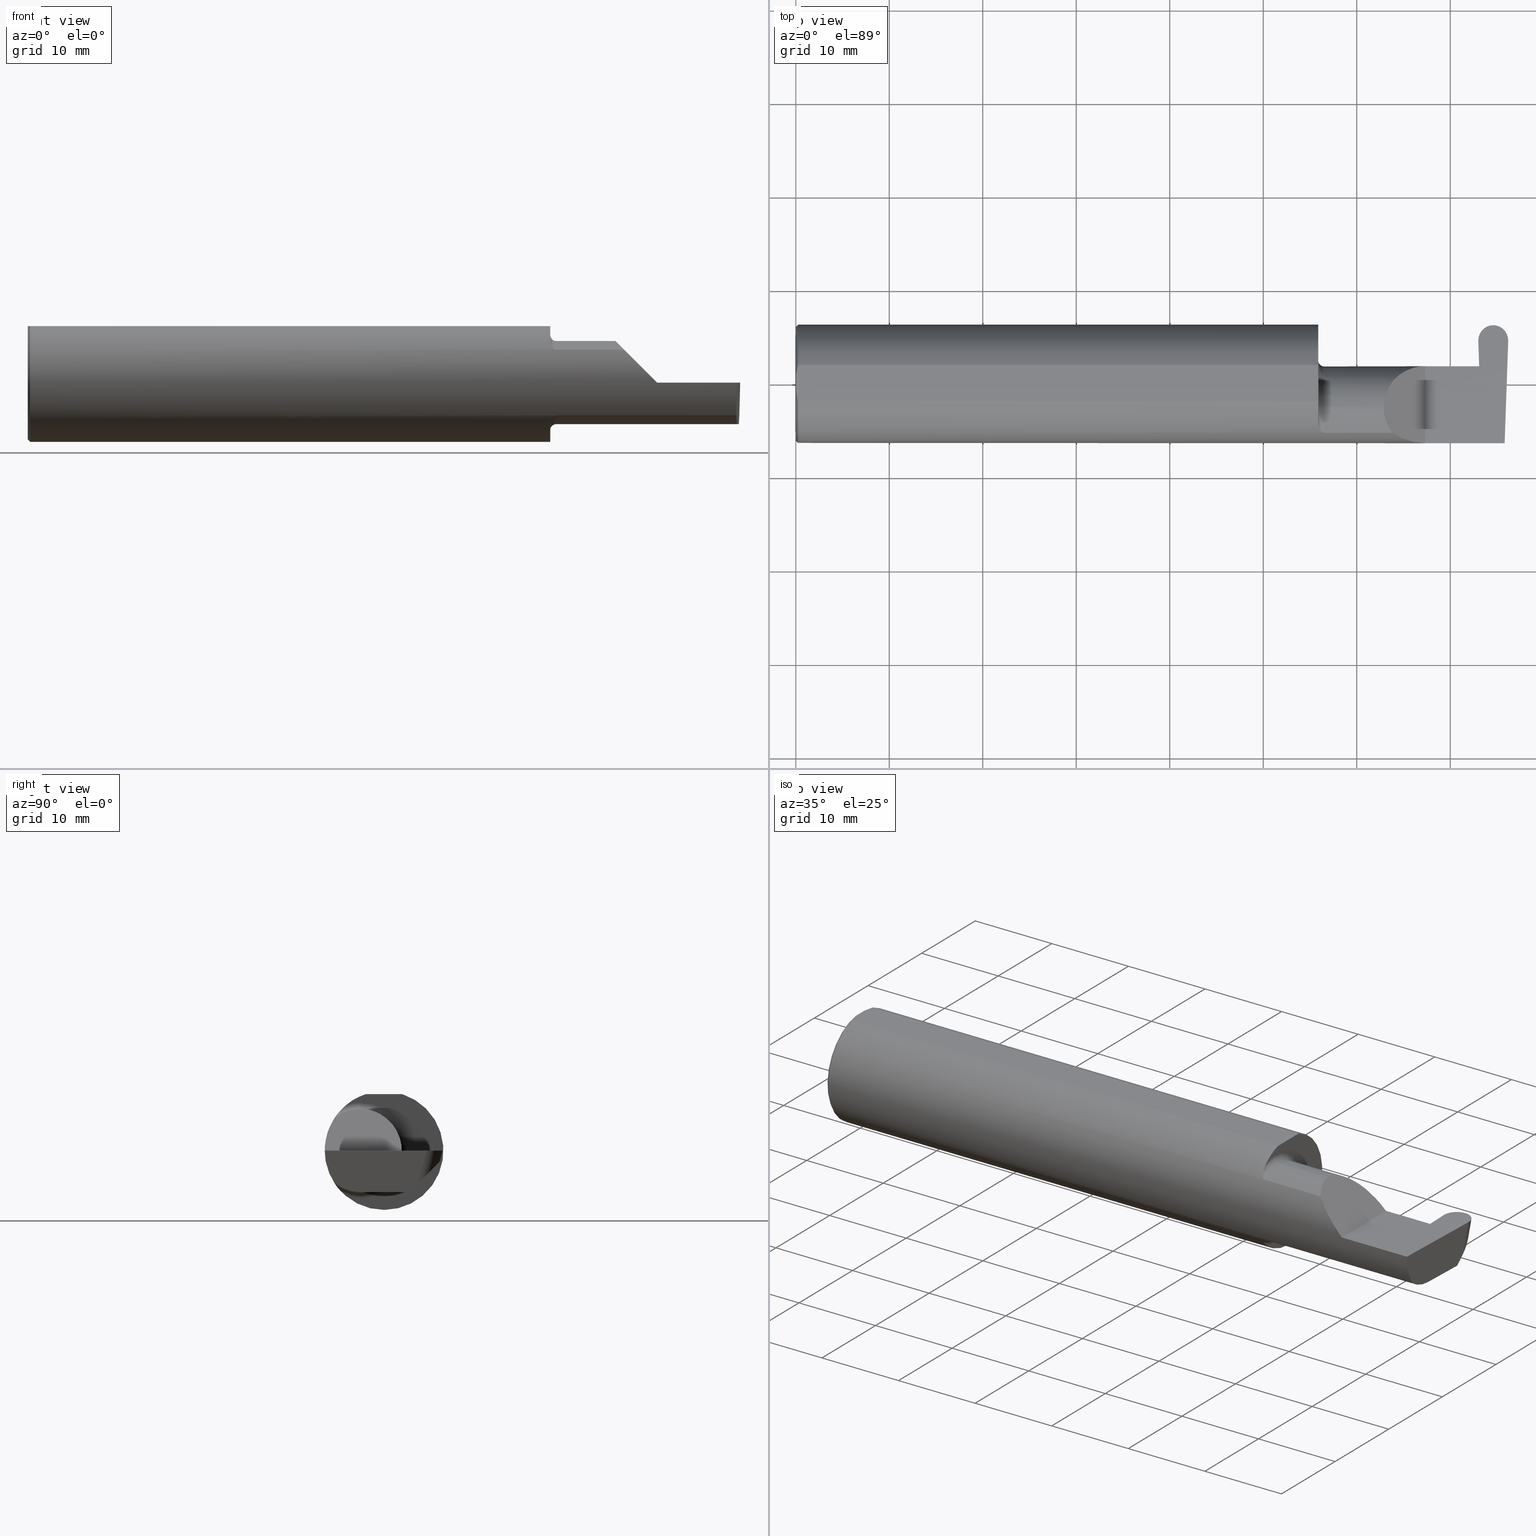
[diagram: canonical four-view strip — front | top / right | iso, engineering-drawing reading convention]
A machine part, canonical four-view strip (front | top / right | iso — engineering-drawing reading convention). The complete STEP part file that produces these views, byte-faithful:
ISO-10303-21;
HEADER;
FILE_DESCRIPTION (( 'STEP AP203' ),
    '1' );
FILE_NAME ('222473-GFR125-12.STEP',
    '2024-06-28T19:16:35',
    ( '' ),
    ( '' ),
    'SwSTEP 2.0',
    'SolidWorks 2024',
    '' );
FILE_SCHEMA (( 'CONFIG_CONTROL_DESIGN' ));
ENDSEC;

DATA;
#1 = COORDINATED_UNIVERSAL_TIME_OFFSET ( 8, 0, .BEHIND. ) ;
#2 = FACE_OUTER_BOUND ( 'NONE', #8, .T. ) ;
#3 = VECTOR ( 'NONE', #436, 39.37007874015748143 ) ;
#4 = CARTESIAN_POINT ( 'NONE',  ( 2.200000000000000178, 0.07404339472834127467, -0.006107411922952042140 ) ) ;
#5 = VECTOR ( 'NONE', #185, 39.37007874015748143 ) ;
#6 = VECTOR ( 'NONE', #107, 39.37007874015748854 ) ;
#7 = EDGE_CURVE ( 'NONE', #571, #720, #464, .T. ) ;
#8 = EDGE_LOOP ( 'NONE', ( #336, #375, #531, #341 ) ) ;
#9 =( BOUNDED_CURVE ( )  B_SPLINE_CURVE ( 3, ( #690, #365, #686, #435 ),
 .UNSPECIFIED., .F., .F. ) 
 B_SPLINE_CURVE_WITH_KNOTS ( ( 4, 4 ),
 ( 6.160376845738954721, 6.746954780470613144 ),
 .UNSPECIFIED. ) 
 CURVE ( )  GEOMETRIC_REPRESENTATION_ITEM ( )  RATIONAL_B_SPLINE_CURVE ( ( 1.000000000000000000, 0.9715321379117538569, 0.9715321379117538569, 1.000000000000000000 ) ) 
 REPRESENTATION_ITEM ( '' )  );
#10 = CARTESIAN_POINT ( 'NONE',  ( 2.200000000000000178, 0.000000000000000000, 0.000000000000000000 ) ) ;
#11 = DIRECTION ( 'NONE',  ( 0.000000000000000000, 0.000000000000000000, -1.000000000000000000 ) ) ;
#12 = ORIENTED_EDGE ( 'NONE', *, *, #608, .F. ) ;
#13 = CARTESIAN_POINT ( 'NONE',  ( 2.877587758332053269, 0.07414999999999977165, 0.000000000000000000 ) ) ;
#14 = CARTESIAN_POINT ( 'NONE',  ( 2.208182335268384033, -0.1972192205116131969, 0.1535061413537209263 ) ) ;
#15 = ORIENTED_EDGE ( 'NONE', *, *, #325, .F. ) ;
#16 = ADVANCED_FACE ( 'NONE', ( #616 ), #806, .T. ) ;
#17 = CARTESIAN_POINT ( 'NONE',  ( 2.225000000000000089, -0.1008499999999999952, -0.1999999999999999556 ) ) ;
#18 = CARTESIAN_POINT ( 'NONE',  ( 2.881751263448093514, -2.813289441922686596, -0.1800126308514063134 ) ) ;
#19 = VECTOR ( 'NONE', #396, 39.37007874015748143 ) ;
#20 = ORIENTED_EDGE ( 'NONE', *, *, #803, .F. ) ;
#21 = CIRCLE ( 'NONE', #512, 0.1750000000000000167 ) ;
#22 = EDGE_CURVE ( 'NONE', #802, #502, #342, .T. ) ;
#23 = FACE_OUTER_BOUND ( 'NONE', #645, .T. ) ;
#24 = CC_DESIGN_DATE_AND_TIME_ASSIGNMENT ( #557, #634, ( #34 ) ) ;
#25 = DIRECTION ( 'NONE',  ( 1.000000000000000000, 0.000000000000000000, 0.000000000000000000 ) ) ;
#26 = ORIENTED_EDGE ( 'NONE', *, *, #55, .F. ) ;
#27 = B_SPLINE_CURVE_WITH_KNOTS ( 'NONE', 3,
 ( #268, #516, #792, #224 ),
 .UNSPECIFIED., .F., .F.,
 ( 4, 4 ),
 ( 0.01593449416844770414, 0.01712021724825603733 ),
 .UNSPECIFIED. ) ;
#28 = PLANE ( 'NONE',  #772 ) ;
#29 = LINE ( 'NONE', #177, #458 ) ;
#30 = ORIENTED_EDGE ( 'NONE', *, *, #521, .F. ) ;
#31 = CARTESIAN_POINT ( 'NONE',  ( 2.873827072278243744, 0.1818419583544338691, 0.000000000000000000 ) ) ;
#32 = CARTESIAN_POINT ( 'NONE',  ( 0.000000000000000000, 0.000000000000000000, 0.000000000000000000 ) ) ;
#33 = ORIENTED_EDGE ( 'NONE', *, *, #451, .T. ) ;
#34 = SECURITY_CLASSIFICATION ( '', '', #187 ) ;
#35 = VECTOR ( 'NONE', #83, 39.37007874015748143 ) ;
#36 = LOCAL_TIME ( 12, 16, 35.00000000000000000, #425 ) ;
#37 = CARTESIAN_POINT ( 'NONE',  ( 2.994250465595685640, 0.1058243371481696615, -0.1750000000000001277 ) ) ;
#38 = CARTESIAN_POINT ( 'NONE',  ( 2.873827072278243744, 0.1818419583544338691, 0.000000000000000000 ) ) ;
#39 = ORIENTED_EDGE ( 'NONE', *, *, #800, .F. ) ;
#40 = CYLINDRICAL_SURFACE ( 'NONE', #605, 0.1750000000000000444 ) ;
#41 = CARTESIAN_POINT ( 'NONE',  ( 2.225000000000000089, -0.1008500000000000091, 0.1750000000000000167 ) ) ;
#42 = ORIENTED_EDGE ( 'NONE', *, *, #195, .F. ) ;
#43 = CARTESIAN_POINT ( 'NONE',  ( 2.200000000000000178, -0.1008500000000000091, 0.1999999999999999556 ) ) ;
#44 = CARTESIAN_POINT ( 'NONE',  ( 2.996893271351730004, 0.1562725836412660607, -0.1245517535069031456 ) ) ;
#45 = EDGE_LOOP ( 'NONE', ( #211, #777, #397, #771 ) ) ;
#46 = ORIENTED_EDGE ( 'NONE', *, *, #145, .F. ) ;
#47 = ADVANCED_FACE ( 'NONE', ( #611 ), #186, .T. ) ;
#48 = DIRECTION ( 'NONE',  ( -1.000000000000000000, -0.000000000000000000, -0.000000000000000000 ) ) ;
#49 = CARTESIAN_POINT ( 'NONE',  ( 0.009999999999999856226, -0.07650098038587520299, 0.2378499999999998671 ) ) ;
#50 = ORIENTED_EDGE ( 'NONE', *, *, #227, .F. ) ;
#51 = CARTESIAN_POINT ( 'NONE',  ( 2.999961557721757099, 0.1818419583544338969, 0.000000000000000000 ) ) ;
#52 = CARTESIAN_POINT ( 'NONE',  ( 2.999910294815772982, 0.1801460098349874084, 0.0004558030455618249425 ) ) ;
#53 = ORIENTED_EDGE ( 'NONE', *, *, #622, .T. ) ;
#54 = PLANE ( 'NONE',  #470 ) ;
#55 = EDGE_CURVE ( 'NONE', #285, #394, #207, .T. ) ;
#56 = EDGE_LOOP ( 'NONE', ( #175, #160, #784, #547 ) ) ;
#57 = CC_DESIGN_PERSON_AND_ORGANIZATION_ASSIGNMENT ( #246, #491, ( #181 ) ) ;
#58 = APPROVAL_STATUS ( 'not_yet_approved' ) ;
#59 = LINE ( 'NONE', #820, #364 ) ;
#60 = VECTOR ( 'NONE', #103, 39.37007874015748143 ) ;
#61 = CIRCLE ( 'NONE', #632, 0.1750000000000000167 ) ;
#62 = VERTEX_POINT ( 'NONE', #505 ) ;
#63 = APPROVAL_DATE_TIME ( #760, #554 ) ;
#64 = CARTESIAN_POINT ( 'NONE',  ( 2.877698151322465314, 0.07404339472834124691, -0.006107411922953761250 ) ) ;
#65 = CARTESIAN_POINT ( 'NONE',  ( 2.983929579294953616, -0.2080850024789289987, -0.1382955322609668025 ) ) ;
#66 = ORIENTED_EDGE ( 'NONE', *, *, #325, .T. ) ;
#67 = COORDINATED_UNIVERSAL_TIME_OFFSET ( 8, 0, .BEHIND. ) ;
#68 = CARTESIAN_POINT ( 'NONE',  ( 2.549394315000000244, -0.2080850024789289987, -0.1382955322609668025 ) ) ;
#69 = CARTESIAN_POINT ( 'NONE',  ( 2.936894315000000866, 0.2348176093011050958, -0.04600672784706324320 ) ) ;
#70 = EDGE_LOOP ( 'NONE', ( #50, #150, #109, #320, #515, #601, #814, #42 ) ) ;
#71 = PERSON_AND_ORGANIZATION_ROLE ( 'classification_officer' ) ;
#72 = DIRECTION ( 'NONE',  ( -1.000000000000000000, -0.000000000000000000, -0.000000000000000000 ) ) ;
#73 = PLANE ( 'NONE',  #405 ) ;
#74 = AXIS2_PLACEMENT_3D ( 'NONE', #32, #710, #644 ) ;
#75 = AXIS2_PLACEMENT_3D ( 'NONE', #795, #593, #234 ) ;
#76 = ORIENTED_EDGE ( 'NONE', *, *, #80, .F. ) ;
#77 = MECHANICAL_CONTEXT ( 'NONE', #370, 'mechanical' ) ;
#78 = CARTESIAN_POINT ( 'NONE',  ( 2.225000000000000089, -0.2080850024789289987, 0.1382955322609667470 ) ) ;
#79 = CARTESIAN_POINT ( 'NONE',  ( 2.200000000000000178, -0.1008500000000000091, 0.000000000000000000 ) ) ;
#80 = EDGE_CURVE ( 'NONE', #386, #663, #315, .T. ) ;
#81 = ORIENTED_EDGE ( 'NONE', *, *, #94, .F. ) ;
#82 = CARTESIAN_POINT ( 'NONE',  ( 2.223318040126429196, -0.2080850024789291652, -0.1382955322609666915 ) ) ;
#83 = DIRECTION ( 'NONE',  ( -0.01806954526206908801, 0.01744955702544859211, 0.9996844524616943506 ) ) ;
#84 = EDGE_CURVE ( 'NONE', #595, #571, #691, .T. ) ;
#85 = VERTEX_POINT ( 'NONE', #69 ) ;
#86 = CARTESIAN_POINT ( 'NONE',  ( 2.225000000000000089, -0.1008500000000000091, 0.000000000000000000 ) ) ;
#87 = DIRECTION ( 'NONE',  ( 0.000000000000000000, 1.000000000000000000, 0.000000000000000000 ) ) ;
#88 = AXIS2_PLACEMENT_3D ( 'NONE', #412, #415, #422 ) ;
#89 = ORIENTED_EDGE ( 'NONE', *, *, #7, .F. ) ;
#90 = AXIS2_PLACEMENT_3D ( 'NONE', #457, #271, #399 ) ;
#91 = CARTESIAN_POINT ( 'NONE',  ( 2.218863362722770738, -0.2068301641248770639, -0.1401678546132360259 ) ) ;
#92 = CARTESIAN_POINT ( 'NONE',  ( 0.000000000000000000, -0.07650098038587520299, 0.2378499999999998671 ) ) ;
#93 = VERTEX_POINT ( 'NONE', #684 ) ;
#94 = EDGE_CURVE ( 'NONE', #371, #85, #725, .T. ) ;
#95 = CARTESIAN_POINT ( 'NONE',  ( 2.225000000000000089, -0.1008499999999999952, -0.1750000000000000167 ) ) ;
#96 = DIRECTION ( 'NONE',  ( 0.02590004391968223421, -0.2587322210431824421, -0.9656017944882974158 ) ) ;
#97 = VERTEX_POINT ( 'NONE', #637 ) ;
#98 = PLANE ( 'NONE',  #673 ) ;
#99 = CARTESIAN_POINT ( 'NONE',  ( 2.877698151322465314, 0.07404339472834124691, -0.006107411922953761250 ) ) ;
#100 = EDGE_LOOP ( 'NONE', ( #534, #404, #351, #794, #382, #630 ) ) ;
#101 = CIRCLE ( 'NONE', #604, 0.2398500000000001742 ) ;
#102 = AXIS2_PLACEMENT_3D ( 'NONE', #750, #118, #171 ) ;
#103 = DIRECTION ( 'NONE',  ( -0.03489949670249506419, -0.9993908270190959842, 1.223270068893321771E-16 ) ) ;
#104 = CARTESIAN_POINT ( 'NONE',  ( 2.936894315000000866, 0.2348176093011050958, -0.04600672784706324320 ) ) ;
#105 = EDGE_CURVE ( 'NONE', #796, #509, #525, .T. ) ;
#106 = ORIENTED_EDGE ( 'NONE', *, *, #80, .T. ) ;
#107 = DIRECTION ( 'NONE',  ( 0.7071067811865486830, 0.000000000000000000, -0.7071067811865462405 ) ) ;
#108 = CARTESIAN_POINT ( 'NONE',  ( 3.402190948718818664, -0.1008500000000001340, -0.1750000000000000722 ) ) ;
#109 = ORIENTED_EDGE ( 'NONE', *, *, #662, .F. ) ;
#110 = ADVANCED_FACE ( 'NONE', ( #501 ), #73, .T. ) ;
#111 = DIRECTION ( 'NONE',  ( -1.000000000000000000, -0.000000000000000000, -0.000000000000000000 ) ) ;
#112 = ORIENTED_EDGE ( 'NONE', *, *, #597, .F. ) ;
#113 = PRODUCT_DEFINITION_SHAPE ( 'NONE', 'NONE',  #791 ) ;
#114 = AXIS2_PLACEMENT_3D ( 'NONE', #783, #210, #450 ) ;
#115 =( NAMED_UNIT ( * ) PLANE_ANGLE_UNIT ( ) SI_UNIT ( $, .RADIAN. ) );
#116 = AXIS2_PLACEMENT_3D ( 'NONE', #279, #216, #705 ) ;
#117 = CARTESIAN_POINT ( 'NONE',  ( 2.872525856337140748, 0.2191039076196377999, 1.588360126375408623E-17 ) ) ;
#118 = DIRECTION ( 'NONE',  ( 0.000000000000000000, -1.000000000000000000, 0.000000000000000000 ) ) ;
#119 = CARTESIAN_POINT ( 'NONE',  ( 0.000000000000000000, 0.000000000000000000, -0.2398500000000001742 ) ) ;
#120 = EDGE_CURVE ( 'NONE', #551, #712, #427, .T. ) ;
#121 = CARTESIAN_POINT ( 'NONE',  ( 0.001983148254845701515, -0.04629825796642599717, 0.2378499999999998671 ) ) ;
#122 = VERTEX_POINT ( 'NONE', #767 ) ;
#123 = PERSON_AND_ORGANIZATION_ROLE ( 'creator' ) ;
#124 = CARTESIAN_POINT ( 'NONE',  ( 2.225000000000000089, -0.1008500000000000091, 0.000000000000000000 ) ) ;
#125 = ORIENTED_EDGE ( 'NONE', *, *, #245, .F. ) ;
#126 = SHAPE_DEFINITION_REPRESENTATION ( #113, #609 ) ;
#127 = CARTESIAN_POINT ( 'NONE',  ( 2.511704467739031887, -0.2080850024789288877, 0.1382955322609669413 ) ) ;
#128 = DIRECTION ( 'NONE',  ( -0.02590004391968258809, -0.2587322210431824976, -0.9656017944882975268 ) ) ;
#129 = EDGE_CURVE ( 'NONE', #595, #502, #61, .T. ) ;
#130 = FACE_OUTER_BOUND ( 'NONE', #222, .T. ) ;
#131 = CARTESIAN_POINT ( 'NONE',  ( 2.200000000000000178, -0.1008499999999999952, -0.1750000000000000444 ) ) ;
#132 = ORIENTED_EDGE ( 'NONE', *, *, #7, .T. ) ;
#133 = DIRECTION ( 'NONE',  ( 1.000000000000000000, -0.000000000000000000, -0.000000000000000000 ) ) ;
#134 = DIRECTION ( 'NONE',  ( -1.000000000000000000, -0.000000000000000000, -0.000000000000000000 ) ) ;
#135 = VERTEX_POINT ( 'NONE', #65 ) ;
#136 = APPROVAL_DATE_TIME ( #694, #664 ) ;
#137 = FACE_OUTER_BOUND ( 'NONE', #667, .T. ) ;
#138 = AXIS2_PLACEMENT_3D ( 'NONE', #400, #715, #335 ) ;
#139 = DIRECTION ( 'NONE',  ( 0.000000000000000000, 0.000000000000000000, 1.000000000000000000 ) ) ;
#140 = APPROVAL_PERSON_ORGANIZATION ( #689, #638, #298 ) ;
#141 = CLOSED_SHELL ( 'NONE', ( #763, #16, #389, #612, #544, #510, #362, #683, #693, #260, #398, #591, #636, #408, #110, #449, #774, #748, #679, #711, #170, #47, #570 ) ) ;
#142 = ORIENTED_EDGE ( 'NONE', *, *, #558, .T. ) ;
#143 = DIRECTION ( 'NONE',  ( 0.02590004391968223074, -0.2587322210431824976, -0.9656017944882975268 ) ) ;
#144 =( BOUNDED_CURVE ( )  B_SPLINE_CURVE ( 3, ( #619, #262, #198, #426 ),
 .UNSPECIFIED., .F., .F. ) 
 B_SPLINE_CURVE_WITH_KNOTS ( ( 4, 4 ),
 ( 0.000000000000000000, 1.570796326794896336 ),
 .UNSPECIFIED. ) 
 CURVE ( )  GEOMETRIC_REPRESENTATION_ITEM ( )  RATIONAL_B_SPLINE_CURVE ( ( 1.000000000000000000, 0.8047378541243650485, 0.8047378541243650485, 1.000000000000000000 ) ) 
 REPRESENTATION_ITEM ( '' )  );
#145 = EDGE_CURVE ( 'NONE', #324, #595, #346, .T. ) ;
#146 = CARTESIAN_POINT ( 'NONE',  ( 2.225000000000000089, -0.2080850024789289987, 0.1382955322609667470 ) ) ;
#147 = ORIENTED_EDGE ( 'NONE', *, *, #22, .F. ) ;
#148 = CARTESIAN_POINT ( 'NONE',  ( 2.200000000000000178, -0.1008500000000000091, 0.1750000000000000444 ) ) ;
#149 = CARTESIAN_POINT ( 'NONE',  ( 2.936894315000000422, 0.2425588618090795956, -0.01713436099308476498 ) ) ;
#150 = ORIENTED_EDGE ( 'NONE', *, *, #190, .T. ) ;
#151 = DIRECTION ( 'NONE',  ( -1.000000000000000000, -0.000000000000000000, -0.000000000000000000 ) ) ;
#152 = LINE ( 'NONE', #660, #797 ) ;
#153 = ORIENTED_EDGE ( 'NONE', *, *, #646, .T. ) ;
#154 = CIRCLE ( 'NONE', #393, 0.02499999999999993894 ) ;
#155 = DIRECTION ( 'NONE',  ( 1.000000000000000000, 0.000000000000000000, 0.000000000000000000 ) ) ;
#156 = LINE ( 'NONE', #718, #19 ) ;
#157 = ORIENTED_EDGE ( 'NONE', *, *, #815, .F. ) ;
#158 = DIRECTION ( 'NONE',  ( 1.000000000000000000, 0.000000000000000000, 0.000000000000000000 ) ) ;
#159 = CARTESIAN_POINT ( 'NONE',  ( 2.880773714454434753, -0.001152430219572287730, -0.1750000000000000722 ) ) ;
#160 = ORIENTED_EDGE ( 'NONE', *, *, #734, .T. ) ;
#161 = CARTESIAN_POINT ( 'NONE',  ( 2.206147634408388125, -0.1932733126899461307, -0.1584637047788196584 ) ) ;
#162 = EDGE_CURVE ( 'NONE', #626, #551, #384, .T. ) ;
#163 = CARTESIAN_POINT ( 'NONE',  ( 2.225000000000000089, -0.2080850024789289709, -0.1382955322609668025 ) ) ;
#164 = ORIENTED_EDGE ( 'NONE', *, *, #736, .F. ) ;
#165 = VECTOR ( 'NONE', #526, 39.37007874015748143 ) ;
#166 =( BOUNDED_CURVE ( )  B_SPLINE_CURVE ( 3, ( #149, #217, #280, #104 ),
 .UNSPECIFIED., .F., .F. ) 
 B_SPLINE_CURVE_WITH_KNOTS ( ( 4, 4 ),
 ( 4.712388980384687898, 4.724678304898035641 ),
 .UNSPECIFIED. ) 
 CURVE ( )  GEOMETRIC_REPRESENTATION_ITEM ( )  RATIONAL_B_SPLINE_CURVE ( ( 1.000000000000000000, 0.9999874144148499511, 0.9999874144148499511, 1.000000000000000000 ) ) 
 REPRESENTATION_ITEM ( '' )  );
#167 = VECTOR ( 'NONE', #179, 39.37007874015748143 ) ;
#168 = VECTOR ( 'NONE', #134, 39.37007874015748143 ) ;
#169 = DIRECTION ( 'NONE',  ( -0.03701744261649780876, 0.7066221440565400025, 0.7066221440565478851 ) ) ;
#170 = ADVANCED_FACE ( 'NONE', ( #322 ), #573, .F. ) ;
#171 = DIRECTION ( 'NONE',  ( 0.000000000000000000, 0.000000000000000000, -1.000000000000000000 ) ) ;
#172 = CC_DESIGN_PERSON_AND_ORGANIZATION_ASSIGNMENT ( #816, #376, ( #181 ) ) ;
#173 = CARTESIAN_POINT ( 'NONE',  ( 2.217611663768900065, -0.2061921161193829566, -0.1411075319999376687 ) ) ;
#174 = FACE_OUTER_BOUND ( 'NONE', #789, .T. ) ;
#175 = ORIENTED_EDGE ( 'NONE', *, *, #105, .F. ) ;
#176 = LENGTH_MEASURE_WITH_UNIT ( LENGTH_MEASURE( 0.02539999999999999897 ), #411 );
#177 = CARTESIAN_POINT ( 'NONE',  ( 2.887383178847820808, -0.1188274834642222139, -0.1750000000000000722 ) ) ;
#178 = ORIENTED_EDGE ( 'NONE', *, *, #223, .F. ) ;
#179 = DIRECTION ( 'NONE',  ( -0.000000000000000000, 1.000000000000000000, -0.000000000000000000 ) ) ;
#180 = VECTOR ( 'NONE', #560, 39.37007874015748143 ) ;
#181 = PRODUCT_DEFINITION_FORMATION_WITH_SPECIFIED_SOURCE ( 'ANY', '', #233, .NOT_KNOWN. ) ;
#182 = FACE_OUTER_BOUND ( 'NONE', #649, .T. ) ;
#183 = ORIENTED_EDGE ( 'NONE', *, *, #558, .F. ) ;
#184 = PERSON_AND_ORGANIZATION ( #719, #313 ) ;
#185 = DIRECTION ( 'NONE',  ( 1.000000000000000000, -0.000000000000000000, -0.000000000000000000 ) ) ;
#186 = CYLINDRICAL_SURFACE ( 'NONE', #589, 0.06300000000000001432 ) ;
#187 = SECURITY_CLASSIFICATION_LEVEL ( 'unclassified' ) ;
#188 = CARTESIAN_POINT ( 'NONE',  ( 2.225000000000000089, -0.1008500000000000091, 0.000000000000000000 ) ) ;
#189 = CARTESIAN_POINT ( 'NONE',  ( 2.899504147978140267, 0.2341676052385956164, -0.04665673190957269484 ) ) ;
#190 = EDGE_CURVE ( 'NONE', #62, #652, #754, .T. ) ;
#191 = APPLICATION_PROTOCOL_DEFINITION ( 'international standard', 'config_control_design', 1994, #582 ) ;
#192 = AXIS2_PLACEMENT_3D ( 'NONE', #356, #738, #669 ) ;
#193 = DIRECTION ( 'NONE',  ( 1.000000000000000000, 0.000000000000000000, 0.000000000000000000 ) ) ;
#194 = VECTOR ( 'NONE', #338, 39.37007874015748143 ) ;
#195 = EDGE_CURVE ( 'NONE', #551, #264, #308, .T. ) ;
#196 = CARTESIAN_POINT ( 'NONE',  ( 2.223329956043142541, -0.2080850024798590880, 0.1382955322595675052 ) ) ;
#197 = ORIENTED_EDGE ( 'NONE', *, *, #372, .F. ) ;
#198 = CARTESIAN_POINT ( 'NONE',  ( 2.547487373415290968, 0.07415000000000000757, 0.1025126265847084162 ) ) ;
#199 = CARTESIAN_POINT ( 'NONE',  ( 2.200367168219774072, -0.1713400252854603845, 0.1819601557798505576 ) ) ;
#200 = ORIENTED_EDGE ( 'NONE', *, *, #596, .T. ) ;
#201 = CALENDAR_DATE ( 2024, 28, 6 ) ;
#202 = LINE ( 'NONE', #68, #672 ) ;
#203 = CARTESIAN_POINT ( 'NONE',  ( 2.874814236522603483, 0.1959989092472254335, -0.08482542790094331486 ) ) ;
#204 = EDGE_LOOP ( 'NONE', ( #437, #574, #277, #707, #157 ) ) ;
#205 = EDGE_CURVE ( 'NONE', #697, #324, #456, .T. ) ;
#206 = CARTESIAN_POINT ( 'NONE',  ( 2.200000000000000178, 0.07650098038587520299, 0.2378499999999998671 ) ) ;
#207 = LINE ( 'NONE', #687, #168 ) ;
#208 = LOCAL_TIME ( 12, 16, 35.00000000000000000, #1 ) ;
#209 = ORIENTED_EDGE ( 'NONE', *, *, #521, .T. ) ;
#210 = DIRECTION ( 'NONE',  ( 1.000000000000000000, 0.000000000000000000, 0.000000000000000000 ) ) ;
#211 = ORIENTED_EDGE ( 'NONE', *, *, #734, .F. ) ;
#212 = PLANE ( 'NONE',  #90 ) ;
#213 = CARTESIAN_POINT ( 'NONE',  ( 0.000000000000000000, -0.03090954545120560767, 0.2378499999999998671 ) ) ;
#214 = EDGE_CURVE ( 'NONE', #122, #85, #166, .T. ) ;
#215 = VERTEX_POINT ( 'NONE', #584 ) ;
#216 = DIRECTION ( 'NONE',  ( -0.7071067811865439090, 0.000000000000000000, -0.7071067811865511255 ) ) ;
#217 = CARTESIAN_POINT ( 'NONE',  ( 2.936894315000000866, 0.2399798948975154222, -0.02675919653808110990 ) ) ;
#218 = AXIS2_PLACEMENT_3D ( 'NONE', #13, #568, #254 ) ;
#219 = ORIENTED_EDGE ( 'NONE', *, *, #302, .F. ) ;
#220 = AXIS2_PLACEMENT_3D ( 'NONE', #349, #286, #564 ) ;
#221 = CARTESIAN_POINT ( 'NONE',  ( 2.873890561051005044, 0.1800238777770215848, 0.000000000000000000 ) ) ;
#222 = EDGE_LOOP ( 'NONE', ( #197, #178, #621, #81, #556 ) ) ;
#223 = EDGE_CURVE ( 'NONE', #122, #215, #275, .T. ) ;
#224 = CARTESIAN_POINT ( 'NONE',  ( 0.009999999999999856226, 0.07650098038587520299, 0.2378499999999998671 ) ) ;
#225 = PLANE ( 'NONE',  #138 ) ;
#226 = VERTEX_POINT ( 'NONE', #213 ) ;
#227 = EDGE_CURVE ( 'NONE', #62, #551, #247, .T. ) ;
#228 = CARTESIAN_POINT ( 'NONE',  ( 2.936434725234540632, 0.2471499999999999808, 0.000000000000000000 ) ) ;
#229 = ORIENTED_EDGE ( 'NONE', *, *, #475, .F. ) ;
#230 = DIRECTION ( 'NONE',  ( -0.03489949670249506419, -0.9993908270190959842, 0.000000000000000000 ) ) ;
#231 = LINE ( 'NONE', #749, #5 ) ;
#232 = VERTEX_POINT ( 'NONE', #530 ) ;
#233 = PRODUCT ( '222473-GFR125-12', '222473-GFR125-12', '', ( #77 ) ) ;
#234 = DIRECTION ( 'NONE',  ( 0.000000000000000000, -0.2588190451025209615, -0.9659258262890682012 ) ) ;
#235 = CARTESIAN_POINT ( 'NONE',  ( 2.898657552142794636, 0.2471500000000000918, 1.268339150128550293E-17 ) ) ;
#236 = CARTESIAN_POINT ( 'NONE',  ( 2.511704467739031887, -0.2080850024789288877, 0.1382955322609669413 ) ) ;
#237 = EDGE_CURVE ( 'NONE', #726, #371, #706, .T. ) ;
#238 = PLANE ( 'NONE',  #75 ) ;
#239 = CARTESIAN_POINT ( 'NONE',  ( 0.000000000000000000, 0.000000000000000000, 0.000000000000000000 ) ) ;
#240 = VERTEX_POINT ( 'NONE', #466 ) ;
#241 = VECTOR ( 'NONE', #629, 39.37007874015748143 ) ;
#242 = CARTESIAN_POINT ( 'NONE',  ( 2.650000000000000355, -0.2498499999999999610, 4.286263797015729199E-17 ) ) ;
#243 = DESIGN_CONTEXT ( 'detailed design', #582, 'design' ) ;
#244 = ORIENTED_EDGE ( 'NONE', *, *, #535, .F. ) ;
#245 = EDGE_CURVE ( 'NONE', #324, #802, #685, .T. ) ;
#246 = PERSON_AND_ORGANIZATION ( #719, #313 ) ;
#247 =( BOUNDED_CURVE ( )  B_SPLINE_CURVE ( 3, ( #651, #159, #655, #99 ),
 .UNSPECIFIED., .F., .F. ) 
 B_SPLINE_CURVE_WITH_KNOTS ( ( 4, 4 ),
 ( 3.159045946109736214, 4.694935687864654206 ),
 .UNSPECIFIED. ) 
 CURVE ( )  GEOMETRIC_REPRESENTATION_ITEM ( )  RATIONAL_B_SPLINE_CURVE ( ( 1.000000000000000000, 0.8128932002257887035, 0.8128932002257887035, 1.000000000000000000 ) ) 
 REPRESENTATION_ITEM ( '' )  );
#248 = FACE_OUTER_BOUND ( 'NONE', #639, .T. ) ;
#249 = CARTESIAN_POINT ( 'NONE',  ( 2.487690731615565642, -0.1771157075472508391, 0.1623092683844331863 ) ) ;
#250 = EDGE_CURVE ( 'NONE', #712, #726, #388, .T. ) ;
#251 = PLANE ( 'NONE',  #218 ) ;
#252 = CARTESIAN_POINT ( 'NONE',  ( -0.002039370078740339320, 0.1058243371481696476, -0.1750000000000001277 ) ) ;
#253 = EDGE_LOOP ( 'NONE', ( #542, #822, #735, #209, #716 ) ) ;
#254 = DIRECTION ( 'NONE',  ( 0.000000000000000000, -0.01745240643728358451, -0.9998476951563912696 ) ) ;
#255 = DIRECTION ( 'NONE',  ( 0.000000000000000000, 0.000000000000000000, 1.000000000000000000 ) ) ;
#256 = ORIENTED_EDGE ( 'NONE', *, *, #237, .T. ) ;
#257 = APPROVAL_DATE_TIME ( #549, #638 ) ;
#258 = DIRECTION ( 'NONE',  ( 1.000000000000000000, 0.000000000000000000, 0.000000000000000000 ) ) ;
#259 = CARTESIAN_POINT ( 'NONE',  ( 2.549394315000000244, -0.2080850024789289987, 0.1382955322609668025 ) ) ;
#260 = ADVANCED_FACE ( 'NONE', ( #454 ), #225, .T. ) ;
#261 = ORIENTED_EDGE ( 'NONE', *, *, #790, .T. ) ;
#262 = CARTESIAN_POINT ( 'NONE',  ( 2.474999999999998757, 0.001662626584708354381, 0.1750000000000000167 ) ) ;
#263 = CARTESIAN_POINT ( 'NONE',  ( 2.212616400345756240, -0.2024684335577103256, 0.1464246884265637816 ) ) ;
#264 = VERTEX_POINT ( 'NONE', #517 ) ;
#265 = CARTESIAN_POINT ( 'NONE',  ( 2.996204691241262985, 0.1431283489340401394, -0.1376959882141292058 ) ) ;
#266 = CARTESIAN_POINT ( 'NONE',  ( 0.009999999999999856226, -0.07650098038587520299, 0.2378499999999998671 ) ) ;
#267 = ORIENTED_EDGE ( 'NONE', *, *, #724, .T. ) ;
#268 = CARTESIAN_POINT ( 'NONE',  ( 0.000000000000000000, 0.03090954545120574992, 0.2378499999999998671 ) ) ;
#269 = LINE ( 'NONE', #723, #165 ) ;
#270 = ORIENTED_EDGE ( 'NONE', *, *, #120, .T. ) ;
#271 = DIRECTION ( 'NONE',  ( -0.9992386149554828290, 0.03489418134010775774, 0.01745240643728358798 ) ) ;
#272 = CARTESIAN_POINT ( 'NONE',  ( 2.200000000000000178, -0.1008500000000000091, 0.000000000000000000 ) ) ;
#273 = EDGE_LOOP ( 'NONE', ( #229, #305, #390, #112, #316, #522, #26, #20, #288 ) ) ;
#274 = DIRECTION ( 'NONE',  ( 0.000000000000000000, 0.000000000000000000, -1.000000000000000000 ) ) ;
#275 = LINE ( 'NONE', #780, #442 ) ;
#276 = VECTOR ( 'NONE', #682, 39.37007874015748854 ) ;
#277 = ORIENTED_EDGE ( 'NONE', *, *, #214, .F. ) ;
#278 = VECTOR ( 'NONE', #72, 39.37007874015748143 ) ;
#279 = CARTESIAN_POINT ( 'NONE',  ( 2.650000000000000355, -0.2500000000000000555, 4.286263797015729199E-17 ) ) ;
#280 = CARTESIAN_POINT ( 'NONE',  ( 2.936894315000000866, 0.2373994449183843558, -0.03638343994947537685 ) ) ;
#281 = ORIENTED_EDGE ( 'NONE', *, *, #195, .T. ) ;
#282 = EDGE_CURVE ( 'NONE', #232, #548, #327, .T. ) ;
#283 = CARTESIAN_POINT ( 'NONE',  ( 3.001262773662860095, 0.2191039076196378277, -7.880140344815818546E-18 ) ) ;
#284 = CARTESIAN_POINT ( 'NONE',  ( 2.984591634083985756, -0.1771157075472508668, -0.1623092683844331585 ) ) ;
#285 = VERTEX_POINT ( 'NONE', #347 ) ;
#286 = DIRECTION ( 'NONE',  ( 0.000000000000000000, 0.000000000000000000, 1.000000000000000000 ) ) ;
#287 = FACE_OUTER_BOUND ( 'NONE', #463, .T. ) ;
#288 = ORIENTED_EDGE ( 'NONE', *, *, #815, .T. ) ;
#289 = VECTOR ( 'NONE', #158, 39.37007874015748143 ) ;
#290 = CARTESIAN_POINT ( 'NONE',  ( 2.214302603425052141, -0.2041009206016212996, -0.1441313430770039816 ) ) ;
#291 = EDGE_CURVE ( 'NONE', #226, #232, #269, .T. ) ;
#292 = LINE ( 'NONE', #52, #757 ) ;
#293 = ORIENTED_EDGE ( 'NONE', *, *, #205, .T. ) ;
#294 = DIRECTION ( 'NONE',  ( 0.02590004391968258463, 0.2587322210431824421, 0.9656017944882975268 ) ) ;
#295 = EDGE_LOOP ( 'NONE', ( #497, #490, #759 ) ) ;
#296 = DIRECTION ( 'NONE',  ( 0.000000000000000000, 0.000000000000000000, 1.000000000000000000 ) ) ;
#297 = ORIENTED_EDGE ( 'NONE', *, *, #779, .T. ) ;
#298 = APPROVAL_ROLE ( '' ) ;
#299 = VERTEX_POINT ( 'NONE', #163 ) ;
#300 = EDGE_CURVE ( 'NONE', #802, #796, #377, .T. ) ;
#301 = DATE_TIME_ROLE ( 'creation_date' ) ;
#302 = EDGE_CURVE ( 'NONE', #62, #626, #156, .T. ) ;
#303 = FACE_OUTER_BOUND ( 'NONE', #366, .T. ) ;
#304 = CARTESIAN_POINT ( 'NONE',  ( 2.201849548162864156, -0.1805300287242674884, 0.1728462070311780341 ) ) ;
#305 = ORIENTED_EDGE ( 'NONE', *, *, #372, .T. ) ;
#306 = COORDINATED_UNIVERSAL_TIME_OFFSET ( 8, 0, .BEHIND. ) ;
#307 = DIRECTION ( 'NONE',  ( -1.000000000000000000, -0.000000000000000000, -0.000000000000000000 ) ) ;
#308 = LINE ( 'NONE', #4, #3 ) ;
#309 = ORIENTED_EDGE ( 'NONE', *, *, #250, .T. ) ;
#310 = PERSON_AND_ORGANIZATION ( #719, #313 ) ;
#311 = CONICAL_SURFACE ( 'NONE', #744, 0.2398500000000001742, 0.7853981633974466137 ) ;
#312 = DIRECTION ( 'NONE',  ( -1.000000000000000000, -0.000000000000000000, -0.000000000000000000 ) ) ;
#313 = ORGANIZATION ( 'UNSPECIFIED', 'UNSPECIFIED', '' ) ;
#314 = EDGE_CURVE ( 'NONE', #697, #518, #152, .T. ) ;
#315 = LINE ( 'NONE', #252, #659 ) ;
#316 = ORIENTED_EDGE ( 'NONE', *, *, #721, .F. ) ;
#317 = CALENDAR_DATE ( 2024, 28, 6 ) ;
#318 = CARTESIAN_POINT ( 'NONE',  ( 2.650000000000000355, -0.2498499999999999610, 4.286263797015729199E-17 ) ) ;
#319 = CARTESIAN_POINT ( 'NONE',  ( 2.206159563508734323, -0.1933019864360849549, 0.1584298865564830461 ) ) ;
#320 = ORIENTED_EDGE ( 'NONE', *, *, #646, .F. ) ;
#321 = DIRECTION ( 'NONE',  ( -0.03489949670249371111, 0.9993908270190959842, 0.000000000000000000 ) ) ;
#322 = FACE_OUTER_BOUND ( 'NONE', #461, .T. ) ;
#323 =( BOUNDED_CURVE ( )  B_SPLINE_CURVE ( 3, ( #228, #235, #117, #474 ),
 .UNSPECIFIED., .F., .T. ) 
 B_SPLINE_CURVE_WITH_KNOTS ( ( 4, 4 ),
 ( 3.045231736429746316, 4.645220385064936508 ),
 .UNSPECIFIED. ) 
 CURVE ( )  GEOMETRIC_REPRESENTATION_ITEM ( )  RATIONAL_B_SPLINE_CURVE ( ( 1.000000000000000000, 0.7978071872141911935, 0.7978071872141911935, 1.000000000000000000 ) ) 
 REPRESENTATION_ITEM ( '' )  );
#324 = VERTEX_POINT ( 'NONE', #594 ) ;
#325 = EDGE_CURVE ( 'NONE', #329, #697, #392, .T. ) ;
#326 = FACE_OUTER_BOUND ( 'NONE', #273, .T. ) ;
#327 = CIRCLE ( 'NONE', #74, 0.2398500000000001742 ) ;
#328 = DIRECTION ( 'NONE',  ( -0.03489949670249371805, 0.9993908270190959842, -0.000000000000000000 ) ) ;
#329 = VERTEX_POINT ( 'NONE', #266 ) ;
#330 = EDGE_CURVE ( 'NONE', #548, #226, #101, .T. ) ;
#331 = FACE_OUTER_BOUND ( 'NONE', #433, .T. ) ;
#332 = DIRECTION ( 'NONE',  ( -1.000000000000000000, -0.000000000000000000, -0.000000000000000000 ) ) ;
#333 = EDGE_LOOP ( 'NONE', ( #132, #153, #781, #348 ) ) ;
#334 = FACE_OUTER_BOUND ( 'NONE', #674, .T. ) ;
#335 = DIRECTION ( 'NONE',  ( 1.000000000000000000, 0.000000000000000000, -0.000000000000000000 ) ) ;
#336 = ORIENTED_EDGE ( 'NONE', *, *, #330, .F. ) ;
#337 =( BOUNDED_CURVE ( )  B_SPLINE_CURVE ( 3, ( #448, #587, #523, #714 ),
 .UNSPECIFIED., .F., .T. ) 
 B_SPLINE_CURVE_WITH_KNOTS ( ( 4, 4 ),
 ( 3.138929695171530643, 4.726629019293367762 ),
 .UNSPECIFIED. ) 
 CURVE ( )  GEOMETRIC_REPRESENTATION_ITEM ( )  RATIONAL_B_SPLINE_CURVE ( ( 1.000000000000000000, 0.8007369912750498253, 0.8007369912750498253, 1.000000000000000000 ) ) 
 REPRESENTATION_ITEM ( '' )  );
#338 = DIRECTION ( 'NONE',  ( -1.000000000000000000, -0.000000000000000000, -0.000000000000000000 ) ) ;
#339 = DIRECTION ( 'NONE',  ( -1.000000000000000000, -0.000000000000000000, -0.000000000000000000 ) ) ;
#340 = EDGE_CURVE ( 'NONE', #329, #97, #428, .T. ) ;
#341 = ORIENTED_EDGE ( 'NONE', *, *, #432, .T. ) ;
#342 = CIRCLE ( 'NONE', #102, 0.02499999999999993894 ) ;
#343 = CC_DESIGN_SECURITY_CLASSIFICATION ( #34, ( #181 ) ) ;
#344 = CC_DESIGN_DATE_AND_TIME_ASSIGNMENT ( #552, #301, ( #791 ) ) ;
#345 = LINE ( 'NONE', #119, #6 ) ;
#346 = B_SPLINE_CURVE_WITH_KNOTS ( 'NONE', 3,
 ( #696, #762, #199, #304, #555, #319, #14, #263, #770, #446, #821, #702, #196, #146 ),
 .UNSPECIFIED., .F., .F.,
 ( 4, 2, 2, 2, 2, 2, 4 ),
 ( 0.0003834465838148161127, 0.0008781406165086606559, 0.001372834649202505199, 0.001867528681896349959, 0.002114875698243277001, 0.002238549206416748111, 0.002362222714590218355 ),
 .UNSPECIFIED. ) ;
#347 = CARTESIAN_POINT ( 'NONE',  ( 2.984886542352623628, -0.2498499999999999888, 0.000000000000000000 ) ) ;
#348 = ORIENTED_EDGE ( 'NONE', *, *, #84, .T. ) ;
#349 = CARTESIAN_POINT ( 'NONE',  ( 0.000000000000000000, 0.000000000000000000, 0.000000000000000000 ) ) ;
#350 = DIRECTION ( 'NONE',  ( 0.000000000000000000, 0.000000000000000000, -1.000000000000000000 ) ) ;
#351 = ORIENTED_EDGE ( 'NONE', *, *, #803, .T. ) ;
#352 = CARTESIAN_POINT ( 'NONE',  ( 2.983929579294953616, -0.2080850024789289987, -0.1382955322609668025 ) ) ;
#353 = ORIENTED_EDGE ( 'NONE', *, *, #302, .T. ) ;
#354 = CIRCLE ( 'NONE', #562, 0.1750000000000000167 ) ;
#355 = CARTESIAN_POINT ( 'NONE',  ( 2.199999999999999289, -0.1716188362992555339, -0.1820560320165478807 ) ) ;
#356 = CARTESIAN_POINT ( 'NONE',  ( 2.200000000000000178, -0.1008500000000000091, 0.000000000000000000 ) ) ;
#357 = CARTESIAN_POINT ( 'NONE',  ( 2.650000000000000355, -0.2500000000000000555, 4.286263797015729199E-17 ) ) ;
#358 = FACE_OUTER_BOUND ( 'NONE', #56, .T. ) ;
#359 = EDGE_CURVE ( 'NONE', #626, #386, #29, .T. ) ;
#360 = ORIENTED_EDGE ( 'NONE', *, *, #120, .F. ) ;
#361 = APPROVAL_ROLE ( '' ) ;
#362 = ADVANCED_FACE ( 'NONE', ( #174 ), #478, .T. ) ;
#363 = ORIENTED_EDGE ( 'NONE', *, *, #129, .T. ) ;
#364 = VECTOR ( 'NONE', #133, 39.37007874015748143 ) ;
#365 = CARTESIAN_POINT ( 'NONE',  ( 2.983692505346974944, -0.2355204011147992438, -0.09701513151466761853 ) ) ;
#366 = EDGE_LOOP ( 'NONE', ( #360, #281, #688, #740 ) ) ;
#367 = CALENDAR_DATE ( 2024, 28, 6 ) ;
#368 = DIRECTION ( 'NONE',  ( 0.000000000000000000, 0.000000000000000000, -1.000000000000000000 ) ) ;
#369 = DIRECTION ( 'NONE',  ( 1.000000000000000000, -0.000000000000000000, -0.000000000000000000 ) ) ;
#370 = APPLICATION_CONTEXT ( 'configuration controlled 3d designs of mechanical parts and assemblies' ) ;
#371 = VERTEX_POINT ( 'NONE', #469 ) ;
#372 = EDGE_CURVE ( 'NONE', #215, #726, #323, .T. ) ;
#373 = CC_DESIGN_PERSON_AND_ORGANIZATION_ASSIGNMENT ( #310, #618, ( #233 ) ) ;
#374 = CARTESIAN_POINT ( 'NONE',  ( 2.200000000000000178, 0.2498499999999999055, 0.000000000000000000 ) ) ;
#375 = ORIENTED_EDGE ( 'NONE', *, *, #800, .T. ) ;
#376 = PERSON_AND_ORGANIZATION_ROLE ( 'creator' ) ;
#377 = CIRCLE ( 'NONE', #812, 0.1999999999999999556 ) ;
#378 = CC_DESIGN_APPROVAL ( #664, ( #181 ) ) ;
#379 = CARTESIAN_POINT ( 'NONE',  ( 2.200000000000000178, -0.1616050818046604609, -0.1905487340154979614 ) ) ;
#380 = CONICAL_SURFACE ( 'NONE', #633, 0.2398500000000001742, 0.7853981633974466137 ) ;
#381 = CARTESIAN_POINT ( 'NONE',  ( 2.936894315000000866, 0.2348176093011050958, -0.04600672784706324320 ) ) ;
#382 = ORIENTED_EDGE ( 'NONE', *, *, #496, .T. ) ;
#383 = CARTESIAN_POINT ( 'NONE',  ( 2.200000000000000178, -0.07650098038587527238, 0.2378499999999998671 ) ) ;
#384 = LINE ( 'NONE', #641, #35 ) ;
#385 = EDGE_CURVE ( 'NONE', #386, #371, #666, .T. ) ;
#386 = VERTEX_POINT ( 'NONE', #537 ) ;
#387 = PLANE ( 'NONE',  #116 ) ;
#388 = LINE ( 'NONE', #38, #498 ) ;
#389 = ADVANCED_FACE ( 'NONE', ( #358 ), #727, .F. ) ;
#390 = ORIENTED_EDGE ( 'NONE', *, *, #250, .F. ) ;
#391 = DIRECTION ( 'NONE',  ( 0.000000000000000000, -0.7071067811865435759, -0.7071067811865514585 ) ) ;
#392 = LINE ( 'NONE', #92, #586 ) ;
#393 = AXIS2_PLACEMENT_3D ( 'NONE', #17, #650, #653 ) ;
#394 = VERTEX_POINT ( 'NONE', #242 ) ;
#395 = FACE_OUTER_BOUND ( 'NONE', #100, .T. ) ;
#396 = DIRECTION ( 'NONE',  ( -0.0003154085283454421441, 0.9999999502587288980, -1.223178646569383438E-16 ) ) ;
#397 = ORIENTED_EDGE ( 'NONE', *, *, #22, .T. ) ;
#398 = ADVANCED_FACE ( 'NONE', ( #182 ), #613, .F. ) ;
#399 = DIRECTION ( 'NONE',  ( -0.03489949670249505725, -0.9993908270190959842, 0.000000000000000000 ) ) ;
#400 = CARTESIAN_POINT ( 'NONE',  ( 3.501298404146671484, 0.2498499999999998500, 0.2378499999999998671 ) ) ;
#401 = ORIENTED_EDGE ( 'NONE', *, *, #752, .F. ) ;
#402 = CARTESIAN_POINT ( 'NONE',  ( 2.200000000000000178, -0.1008500000000000091, 0.000000000000000000 ) ) ;
#403 = CIRCLE ( 'NONE', #758, 0.2498499999999999888 ) ;
#404 = ORIENTED_EDGE ( 'NONE', *, *, #444, .T. ) ;
#405 = AXIS2_PLACEMENT_3D ( 'NONE', #374, #508, #11 ) ;
#406 = CARTESIAN_POINT ( 'NONE',  ( 2.200000000000000178, -0.1008500000000000091, 0.000000000000000000 ) ) ;
#407 = DIRECTION ( 'NONE',  ( 0.000000000000000000, -1.000000000000000000, 1.223176342469858371E-16 ) ) ;
#408 = ADVANCED_FACE ( 'NONE', ( #610 ), #676, .T. ) ;
#409 = ORIENTED_EDGE ( 'NONE', *, *, #55, .T. ) ;
#410 = PRODUCT_RELATED_PRODUCT_CATEGORY ( 'detail', '', ( #233 ) ) ;
#411 =( LENGTH_UNIT ( ) NAMED_UNIT ( * ) SI_UNIT ( $, .METRE. ) );
#412 = CARTESIAN_POINT ( 'NONE',  ( 0.000000000000000000, 0.000000000000000000, 0.000000000000000000 ) ) ;
#413 = VERTEX_POINT ( 'NONE', #730 ) ;
#414 = CARTESIAN_POINT ( 'NONE',  ( 2.987538890366190802, -0.08637003105099173850, -0.1750000000000000722 ) ) ;
#415 = DIRECTION ( 'NONE',  ( -1.000000000000000000, -0.000000000000000000, -0.000000000000000000 ) ) ;
#416 = DIRECTION ( 'NONE',  ( -1.000000000000000000, -0.000000000000000000, -0.000000000000000000 ) ) ;
#417 = CC_DESIGN_APPROVAL ( #638, ( #791 ) ) ;
#418 = B_SPLINE_CURVE_WITH_KNOTS ( 'NONE', 3,
 ( #640, #82, #647, #91, #173, #290, #532, #798, #161, #741, #355, #804 ),
 .UNSPECIFIED., .F., .F.,
 ( 4, 2, 2, 2, 2, 4 ),
 ( 1.964491429042083594E-07, 0.0001260981470478291519, 0.0002519998449527541240, 0.0005038032407626172413, 0.001007410032382342934, 0.002014623615621803643 ),
 .UNSPECIFIED. ) ;
#419 = CARTESIAN_POINT ( 'NONE',  ( 2.866439859938323398, 0.07404339472834124691, -0.006107411922953615534 ) ) ;
#420 = ORIENTED_EDGE ( 'NONE', *, *, #291, .F. ) ;
#421 = EDGE_CURVE ( 'NONE', #615, #62, #533, .T. ) ;
#422 = DIRECTION ( 'NONE',  ( 0.000000000000000000, 0.000000000000000000, 1.000000000000000000 ) ) ;
#423 = ORIENTED_EDGE ( 'NONE', *, *, #385, .T. ) ;
#424 = CC_DESIGN_PERSON_AND_ORGANIZATION_ASSIGNMENT ( #681, #71, ( #34 ) ) ;
#425 = COORDINATED_UNIVERSAL_TIME_OFFSET ( 8, 0, .BEHIND. ) ;
#426 = CARTESIAN_POINT ( 'NONE',  ( 2.650000000000000355, 0.07414999999999999369, 9.797174393178813824E-17 ) ) ;
#427 = LINE ( 'NONE', #620, #180 ) ;
#428 = CIRCLE ( 'NONE', #511, 0.2498499999999999888 ) ;
#429 = AXIS2_PLACEMENT_3D ( 'NONE', #10, #258, #439 ) ;
#430 = CARTESIAN_POINT ( 'NONE',  ( 2.511704467739031887, -0.2080850024789288877, 0.1382955322609669413 ) ) ;
#431 = DIRECTION ( 'NONE',  ( 0.01806679408117574034, 0.000000000000000000, -0.9998367821557817559 ) ) ;
#432 = EDGE_CURVE ( 'NONE', #329, #226, #704, .T. ) ;
#433 = EDGE_LOOP ( 'NONE', ( #309, #256, #747, #768, #528, #270 ) ) ;
#434 = APPROVAL_STATUS ( 'not_yet_approved' ) ;
#435 = CARTESIAN_POINT ( 'NONE',  ( 2.984886542352623628, -0.2498499999999999888, 0.000000000000000000 ) ) ;
#436 = DIRECTION ( 'NONE',  ( -1.000000000000000000, -0.000000000000000000, -0.000000000000000000 ) ) ;
#437 = ORIENTED_EDGE ( 'NONE', *, *, #444, .F. ) ;
#438 = PERSON_AND_ORGANIZATION ( #719, #313 ) ;
#439 = DIRECTION ( 'NONE',  ( 0.000000000000000000, 0.000000000000000000, -1.000000000000000000 ) ) ;
#440 = DIRECTION ( 'NONE',  ( -1.000000000000000000, -0.000000000000000000, -0.000000000000000000 ) ) ;
#441 = EDGE_LOOP ( 'NONE', ( #53, #480, #293, #818, #703, #452 ) ) ;
#442 = VECTOR ( 'NONE', #459, 39.37007874015748854 ) ;
#443 = TOROIDAL_SURFACE ( 'NONE', #799, 0.1999999999999999556, 0.02499999999999992853 ) ;
#444 = EDGE_CURVE ( 'NONE', #677, #413, #292, .T. ) ;
#445 = CARTESIAN_POINT ( 'NONE',  ( 2.600434159100402987, -0.2498499999999999610, 0.04956584089959713973 ) ) ;
#446 = CARTESIAN_POINT ( 'NONE',  ( 2.217647060162628136, -0.2062109266231182125, 0.1410799729252290580 ) ) ;
#447 = ORIENTED_EDGE ( 'NONE', *, *, #654, .T. ) ;
#448 = CARTESIAN_POINT ( 'NONE',  ( 2.936894315000000866, 0.2348176093011050958, -0.04600672784706324320 ) ) ;
#449 = ADVANCED_FACE ( 'NONE', ( #287 ), #54, .F. ) ;
#450 = DIRECTION ( 'NONE',  ( 0.000000000000000000, 0.000000000000000000, -1.000000000000000000 ) ) ;
#451 = EDGE_CURVE ( 'NONE', #677, #663, #807, .T. ) ;
#452 = ORIENTED_EDGE ( 'NONE', *, *, #105, .T. ) ;
#453 = CARTESIAN_POINT ( 'NONE',  ( 2.474999999999998757, -0.1008500000000000091, 0.1750000000000000444 ) ) ;
#454 = FACE_OUTER_BOUND ( 'NONE', #809, .T. ) ;
#455 = ORIENTED_EDGE ( 'NONE', *, *, #145, .T. ) ;
#456 = CIRCLE ( 'NONE', #114, 0.2498499999999999888 ) ;
#457 = CARTESIAN_POINT ( 'NONE',  ( 2.999961557721757099, 0.1818419583544338969, 0.000000000000000000 ) ) ;
#458 = VECTOR ( 'NONE', #671, 39.37007874015748143 ) ;
#459 = DIRECTION ( 'NONE',  ( -0.02590004391968222380, 0.2587322210431824421, 0.9656017944882975268 ) ) ;
#460 = B_SPLINE_CURVE_WITH_KNOTS ( 'NONE', 3,
 ( #419, #675, #536, #598 ),
 .UNSPECIFIED., .F., .F.,
 ( 4, 4 ),
 ( 0.000000000000000000, 1.000000000000000000 ),
 .UNSPECIFIED. ) ;
#461 = EDGE_LOOP ( 'NONE', ( #606, #581, #219 ) ) ;
#462 = DIRECTION ( 'NONE',  ( -1.000000000000000000, -0.000000000000000000, -0.000000000000000000 ) ) ;
#463 = EDGE_LOOP ( 'NONE', ( #484, #353, #561, #106, #297 ) ) ;
#464 =( BOUNDED_CURVE ( )  B_SPLINE_CURVE ( 3, ( #236, #249, #670, #739 ),
 .UNSPECIFIED., .F., .T. ) 
 B_SPLINE_CURVE_WITH_KNOTS ( ( 4, 4 ),
 ( 5.623622464215682015, 6.283185307179586232 ),
 .UNSPECIFIED. ) 
 CURVE ( )  GEOMETRIC_REPRESENTATION_ITEM ( )  RATIONAL_B_SPLINE_CURVE ( ( 1.000000000000000000, 0.9640754331822832812, 0.9640754331822832812, 1.000000000000000000 ) ) 
 REPRESENTATION_ITEM ( '' )  );
#465 = CARTESIAN_POINT ( 'NONE',  ( -0.002039370078740339320, 0.2348243371481683328, -0.04599999999999999922 ) ) ;
#466 = CARTESIAN_POINT ( 'NONE',  ( 2.937353904765460211, 0.2471499999999999808, 0.000000000000000000 ) ) ;
#467 = ORIENTED_EDGE ( 'NONE', *, *, #282, .F. ) ;
#468 = CARTESIAN_POINT ( 'NONE',  ( 2.975131077857207096, 0.2471500000000000363, -4.679930582347232163E-18 ) ) ;
#469 = CARTESIAN_POINT ( 'NONE',  ( 2.877583938758737858, 0.1431283489340402504, -0.1376959882141291225 ) ) ;
#470 = AXIS2_PLACEMENT_3D ( 'NONE', #813, #543, #407 ) ;
#471 = VECTOR ( 'NONE', #230, 39.37007874015748143 ) ;
#472 = ORIENTED_EDGE ( 'NONE', *, *, #84, .F. ) ;
#473 = FACE_OUTER_BOUND ( 'NONE', #70, .T. ) ;
#474 = CARTESIAN_POINT ( 'NONE',  ( 2.873890561051005044, 0.1800238777770215848, 0.000000000000000000 ) ) ;
#475 = EDGE_CURVE ( 'NONE', #215, #240, #231, .T. ) ;
#476 = ORIENTED_EDGE ( 'NONE', *, *, #432, .F. ) ;
#477 = LINE ( 'NONE', #357, #167 ) ;
#478 = CYLINDRICAL_SURFACE ( 'NONE', #88, 0.2498499999999999888 ) ;
#479 =( BOUNDED_CURVE ( )  B_SPLINE_CURVE ( 3, ( #318, #445, #500, #430 ),
 .UNSPECIFIED., .F., .T. ) 
 B_SPLINE_CURVE_WITH_KNOTS ( ( 4, 4 ),
 ( 4.712388980384689674, 5.298966915116348986 ),
 .UNSPECIFIED. ) 
 CURVE ( )  GEOMETRIC_REPRESENTATION_ITEM ( )  RATIONAL_B_SPLINE_CURVE ( ( 1.000000000000000000, 0.9715321379117536349, 0.9715321379117536349, 1.000000000000000000 ) ) 
 REPRESENTATION_ITEM ( '' )  );
#480 = ORIENTED_EDGE ( 'NONE', *, *, #314, .F. ) ;
#481 = ORIENTED_EDGE ( 'NONE', *, *, #282, .T. ) ;
#482 = CARTESIAN_POINT ( 'NONE',  ( 2.937353904765460211, 0.2471499999999999808, 0.000000000000000000 ) ) ;
#483 = DIRECTION ( 'NONE',  ( -1.000000000000000000, -0.000000000000000000, -0.000000000000000000 ) ) ;
#484 = ORIENTED_EDGE ( 'NONE', *, *, #421, .T. ) ;
#485 = CIRCLE ( 'NONE', #429, 0.2498499999999999888 ) ;
#486 = VECTOR ( 'NONE', #625, 39.37007874015748143 ) ;
#487 = EDGE_CURVE ( 'NONE', #652, #299, #354, .T. ) ;
#488 = CC_DESIGN_PERSON_AND_ORGANIZATION_ASSIGNMENT ( #503, #123, ( #791 ) ) ;
#489 = CARTESIAN_POINT ( 'NONE',  ( 0.000000000000000000, -0.03090954545120560767, 0.2378499999999998671 ) ) ;
#490 = ORIENTED_EDGE ( 'NONE', *, *, #223, .T. ) ;
#491 = PERSON_AND_ORGANIZATION_ROLE ( 'design_supplier' ) ;
#492 = CARTESIAN_POINT ( 'NONE',  ( 0.000000000000000000, 0.07650098038587520299, 0.2378499999999998671 ) ) ;
#493 = DIRECTION ( 'NONE',  ( 0.9998367324388628408, 0.0003153570480505199394, 0.01806679318280377325 ) ) ;
#494 = DIRECTION ( 'NONE',  ( -1.000000000000000000, -0.000000000000000000, -0.000000000000000000 ) ) ;
#495 = MANIFOLD_SOLID_BREP ( 'Radii', #141 ) ;
#496 = EDGE_CURVE ( 'NONE', #135, #615, #793, .T. ) ;
#497 = ORIENTED_EDGE ( 'NONE', *, *, #578, .T. ) ;
#498 = VECTOR ( 'NONE', #328, 39.37007874015748143 ) ;
#499 = AXIS2_PLACEMENT_3D ( 'NONE', #572, #643, #787 ) ;
#500 = CARTESIAN_POINT ( 'NONE',  ( 2.552984868485331571, -0.2355204011147991605, 0.09701513151466779894 ) ) ;
#501 = FACE_OUTER_BOUND ( 'NONE', #441, .T. ) ;
#502 = VERTEX_POINT ( 'NONE', #41 ) ;
#503 = PERSON_AND_ORGANIZATION ( #719, #313 ) ;
#504 = DIRECTION ( 'NONE',  ( 0.000000000000000000, 0.000000000000000000, 1.000000000000000000 ) ) ;
#505 = CARTESIAN_POINT ( 'NONE',  ( 2.880805159919762826, -0.1008500000000000368, -0.1750000000000000444 ) ) ;
#506 = ORIENTED_EDGE ( 'NONE', *, *, #314, .T. ) ;
#507 = DIRECTION ( 'NONE',  ( 0.000000000000000000, 0.000000000000000000, -1.000000000000000000 ) ) ;
#508 = DIRECTION ( 'NONE',  ( 1.000000000000000000, 0.000000000000000000, 0.000000000000000000 ) ) ;
#509 = VERTEX_POINT ( 'NONE', #379 ) ;
#510 = ADVANCED_FACE ( 'NONE', ( #303 ), #251, .F. ) ;
#511 = AXIS2_PLACEMENT_3D ( 'NONE', #576, #25, #580 ) ;
#512 = AXIS2_PLACEMENT_3D ( 'NONE', #86, #151, #782 ) ;
#513 = DIRECTION ( 'NONE',  ( -1.000000000000000000, -0.000000000000000000, -0.000000000000000000 ) ) ;
#514 = CARTESIAN_POINT ( 'NONE',  ( 0.000000000000000000, 0.000000000000000000, 0.000000000000000000 ) ) ;
#515 = ORIENTED_EDGE ( 'NONE', *, *, #535, .T. ) ;
#516 = CARTESIAN_POINT ( 'NONE',  ( 0.002005502345409059580, 0.04647171987093979412, 0.2378499999999998671 ) ) ;
#517 = CARTESIAN_POINT ( 'NONE',  ( 2.866439859938323398, 0.07404339472834124691, -0.006107411922953615534 ) ) ;
#518 = VERTEX_POINT ( 'NONE', #206 ) ;
#519 = DIRECTION ( 'NONE',  ( 0.000000000000000000, 0.000000000000000000, 1.000000000000000000 ) ) ;
#520 = DIRECTION ( 'NONE',  ( 1.000000000000000000, 0.000000000000000000, 0.000000000000000000 ) ) ;
#521 = EDGE_CURVE ( 'NONE', #135, #299, #202, .T. ) ;
#522 = ORIENTED_EDGE ( 'NONE', *, *, #790, .F. ) ;
#523 = CARTESIAN_POINT ( 'NONE',  ( 2.998974393477397804, 0.1959989092472247951, -0.08482542790094400875 ) ) ;
#524 = VECTOR ( 'NONE', #801, 39.37007874015748143 ) ;
#525 = CIRCLE ( 'NONE', #773, 0.1999999999999999556 ) ;
#526 = DIRECTION ( 'NONE',  ( -0.000000000000000000, 1.000000000000000000, -0.000000000000000000 ) ) ;
#527 = LOCAL_TIME ( 12, 16, 35.00000000000000000, #765 ) ;
#528 = ORIENTED_EDGE ( 'NONE', *, *, #162, .T. ) ;
#529 = CARTESIAN_POINT ( 'NONE',  ( 2.877587758332053269, 0.07414999999999977165, 0.000000000000000000 ) ) ;
#530 = CARTESIAN_POINT ( 'NONE',  ( 0.000000000000000000, 0.03090954545120574992, 0.2378499999999998671 ) ) ;
#531 = ORIENTED_EDGE ( 'NONE', *, *, #340, .F. ) ;
#532 = CARTESIAN_POINT ( 'NONE',  ( 2.212579853086619419, -0.2024300470081735470, -0.1464774911482684683 ) ) ;
#533 = LINE ( 'NONE', #108, #713 ) ;
#534 = ORIENTED_EDGE ( 'NONE', *, *, #451, .F. ) ;
#535 = EDGE_CURVE ( 'NONE', #720, #545, #144, .T. ) ;
#536 = CARTESIAN_POINT ( 'NONE',  ( 2.866510930119428924, 0.07411446490944692544, -0.002035803974317873868 ) ) ;
#537 = CARTESIAN_POINT ( 'NONE',  ( 2.879538164404315648, 0.1058243371481696893, -0.1750000000000001277 ) ) ;
#538 = AXIS2_PLACEMENT_3D ( 'NONE', #239, #546, #350 ) ;
#539 = ORIENTED_EDGE ( 'NONE', *, *, #291, .T. ) ;
#540 = CARTESIAN_POINT ( 'NONE',  ( 2.200000000000000178, -0.1008499999999999952, -0.1999999999999999556 ) ) ;
#541 = CARTESIAN_POINT ( 'NONE',  ( 2.868840969551623932, 0.3100219863620841676, 0.02919764921391665435 ) ) ;
#542 = ORIENTED_EDGE ( 'NONE', *, *, #190, .F. ) ;
#543 = DIRECTION ( 'NONE',  ( -0.000000000000000000, 1.223176342469858371E-16, 1.000000000000000000 ) ) ;
#544 = ADVANCED_FACE ( 'NONE', ( #2 ), #311, .T. ) ;
#545 = VERTEX_POINT ( 'NONE', #755 ) ;
#546 = DIRECTION ( 'NONE',  ( 1.000000000000000000, 0.000000000000000000, 0.000000000000000000 ) ) ;
#547 = ORIENTED_EDGE ( 'NONE', *, *, #752, .T. ) ;
#548 = VERTEX_POINT ( 'NONE', #769 ) ;
#549 = DATE_AND_TIME ( #627, #786 ) ;
#550 = LINE ( 'NONE', #492, #278 ) ;
#551 = VERTEX_POINT ( 'NONE', #64 ) ;
#552 = DATE_AND_TIME ( #201, #527 ) ;
#553 = DIRECTION ( 'NONE',  ( 1.000000000000000000, 0.000000000000000000, 0.000000000000000000 ) ) ;
#554 = APPROVAL ( #434, 'UNSPECIFIED' ) ;
#555 = CARTESIAN_POINT ( 'NONE',  ( 2.202968662030529323, -0.1849684355203378983, 0.1680843977756267815 ) ) ;
#556 = ORIENTED_EDGE ( 'NONE', *, *, #237, .F. ) ;
#557 = DATE_AND_TIME ( #367, #588 ) ;
#558 = EDGE_CURVE ( 'NONE', #394, #571, #479, .T. ) ;
#559 = CARTESIAN_POINT ( 'NONE',  ( 0.000000000000000000, 0.000000000000000000, 0.000000000000000000 ) ) ;
#560 = DIRECTION ( 'NONE',  ( -0.01806954526206908801, 0.01744955702544859211, 0.9996844524616943506 ) ) ;
#561 = ORIENTED_EDGE ( 'NONE', *, *, #359, .T. ) ;
#562 = AXIS2_PLACEMENT_3D ( 'NONE', #124, #111, #733 ) ;
#563 =( GEOMETRIC_REPRESENTATION_CONTEXT ( 3 ) GLOBAL_UNCERTAINTY_ASSIGNED_CONTEXT ( ( #808 ) ) GLOBAL_UNIT_ASSIGNED_CONTEXT ( ( #728, #115, #811 ) ) REPRESENTATION_CONTEXT ( 'NONE', 'WORKASPACE' ) );
#564 = DIRECTION ( 'NONE',  ( 1.000000000000000000, 0.000000000000000000, 0.000000000000000000 ) ) ;
#565 = CARTESIAN_POINT ( 'NONE',  ( 2.987033238708274752, -0.1008500000000001340, -0.1750000000000000722 ) ) ;
#566 = CARTESIAN_POINT ( 'NONE',  ( 2.877583938758737858, 0.1431283489340402504, -0.1376959882141291225 ) ) ;
#567 = ORIENTED_EDGE ( 'NONE', *, *, #608, .T. ) ;
#568 = DIRECTION ( 'NONE',  ( 0.000000000000000000, -0.9998476951563912696, 0.01745240643728358451 ) ) ;
#569 = DIRECTION ( 'NONE',  ( 0.000000000000000000, 0.9659258262890680902, -0.2588190451025209615 ) ) ;
#570 = ADVANCED_FACE ( 'NONE', ( #130 ), #761, .T. ) ;
#571 = VERTEX_POINT ( 'NONE', #127 ) ;
#572 = CARTESIAN_POINT ( 'NONE',  ( 3.000000000000000444, -0.2500000000000000555, 0.000000000000000000 ) ) ;
#573 = PLANE ( 'NONE',  #745 ) ;
#574 = ORIENTED_EDGE ( 'NONE', *, *, #654, .F. ) ;
#575 = CARTESIAN_POINT ( 'NONE',  ( 0.009999999999999856226, 0.000000000000000000, 0.000000000000000000 ) ) ;
#576 = CARTESIAN_POINT ( 'NONE',  ( 0.009999999999999856226, 0.000000000000000000, 0.000000000000000000 ) ) ;
#577 = VERTEX_POINT ( 'NONE', #624 ) ;
#578 = EDGE_CURVE ( 'NONE', #240, #122, #701, .T. ) ;
#579 = CARTESIAN_POINT ( 'NONE',  ( 2.225000000000000089, -0.1008500000000000091, 0.000000000000000000 ) ) ;
#580 = DIRECTION ( 'NONE',  ( 0.000000000000000000, 0.000000000000000000, -1.000000000000000000 ) ) ;
#581 = ORIENTED_EDGE ( 'NONE', *, *, #162, .F. ) ;
#582 = APPLICATION_CONTEXT ( 'configuration controlled 3d designs of mechanical parts and assemblies' ) ;
#583 = LINE ( 'NONE', #709, #289 ) ;
#584 = CARTESIAN_POINT ( 'NONE',  ( 2.936434725234540632, 0.2471499999999999808, 0.000000000000000000 ) ) ;
#585 = ORIENTED_EDGE ( 'NONE', *, *, #724, .F. ) ;
#586 = VECTOR ( 'NONE', #520, 39.37007874015748143 ) ;
#587 = CARTESIAN_POINT ( 'NONE',  ( 2.974284482021860576, 0.2341676052385947282, -0.04665673190957361077 ) ) ;
#588 = LOCAL_TIME ( 12, 16, 35.00000000000000000, #67 ) ;
#589 = AXIS2_PLACEMENT_3D ( 'NONE', #680, #128, #569 ) ;
#590 = CARTESIAN_POINT ( 'NONE',  ( 2.873878335184228305, 0.1801460098349875194, 0.0004558030455617943138 ) ) ;
#591 = ADVANCED_FACE ( 'NONE', ( #248 ), #380, .T. ) ;
#592 = ORIENTED_EDGE ( 'NONE', *, *, #340, .T. ) ;
#593 = DIRECTION ( 'NONE',  ( 0.000000000000000000, -0.9659258262890682012, 0.2588190451025209615 ) ) ;
#594 = CARTESIAN_POINT ( 'NONE',  ( 2.200000000000000178, -0.1616050818046604609, 0.1905487340154979614 ) ) ;
#595 = VERTEX_POINT ( 'NONE', #78 ) ;
#596 = EDGE_CURVE ( 'NONE', #135, #285, #9, .T. ) ;
#597 = EDGE_CURVE ( 'NONE', #93, #712, #59, .T. ) ;
#598 = CARTESIAN_POINT ( 'NONE',  ( 2.866546465209982131, 0.07414999999999977165, 0.000000000000000000 ) ) ;
#599 = DIRECTION ( 'NONE',  ( -1.000000000000000000, -0.000000000000000000, -0.000000000000000000 ) ) ;
#600 = ORIENTED_EDGE ( 'NONE', *, *, #205, .F. ) ;
#601 = ORIENTED_EDGE ( 'NONE', *, *, #721, .T. ) ;
#602 = LINE ( 'NONE', #414, #60 ) ;
#603 = CARTESIAN_POINT ( 'NONE',  ( 2.985664738015655129, -0.1400387324517231025, -0.1750000000000000999 ) ) ;
#604 = AXIS2_PLACEMENT_3D ( 'NONE', #514, #332, #776 ) ;
#605 = AXIS2_PLACEMENT_3D ( 'NONE', #406, #48, #665 ) ;
#606 = ORIENTED_EDGE ( 'NONE', *, *, #227, .T. ) ;
#607 = FACE_OUTER_BOUND ( 'NONE', #295, .T. ) ;
#608 = EDGE_CURVE ( 'NONE', #518, #577, #550, .T. ) ;
#609 = ADVANCED_BREP_SHAPE_REPRESENTATION ( '222473-GFR125-12', ( #495, #220 ), #563 ) ;
#610 = FACE_OUTER_BOUND ( 'NONE', #253, .T. ) ;
#611 = FACE_OUTER_BOUND ( 'NONE', #204, .T. ) ;
#612 = ADVANCED_FACE ( 'NONE', ( #753 ), #443, .F. ) ;
#613 = PLANE ( 'NONE',  #538 ) ;
#614 = CARTESIAN_POINT ( 'NONE',  ( 2.200000000000000178, -0.1008500000000000091, 0.000000000000000000 ) ) ;
#615 = VERTEX_POINT ( 'NONE', #565 ) ;
#616 = FACE_OUTER_BOUND ( 'NONE', #333, .T. ) ;
#617 = VECTOR ( 'NONE', #169, 39.37007874015748143 ) ;
#618 = PERSON_AND_ORGANIZATION_ROLE ( 'design_owner' ) ;
#619 = CARTESIAN_POINT ( 'NONE',  ( 2.474999999999998757, -0.1008500000000000091, 0.1750000000000000444 ) ) ;
#620 = CARTESIAN_POINT ( 'NONE',  ( 2.877587758332053269, 0.07414999999999977165, 0.000000000000000000 ) ) ;
#621 = ORIENTED_EDGE ( 'NONE', *, *, #214, .T. ) ;
#622 = EDGE_CURVE ( 'NONE', #509, #518, #485, .T. ) ;
#623 = APPROVAL_STATUS ( 'not_yet_approved' ) ;
#624 = CARTESIAN_POINT ( 'NONE',  ( 0.009999999999999856226, 0.07650098038587520299, 0.2378499999999998671 ) ) ;
#625 = DIRECTION ( 'NONE',  ( -1.000000000000000000, -0.000000000000000000, -0.000000000000000000 ) ) ;
#626 = VERTEX_POINT ( 'NONE', #695 ) ;
#627 = CALENDAR_DATE ( 2024, 28, 6 ) ;
#628 = DIRECTION ( 'NONE',  ( 0.000000000000000000, 0.9659258262890680902, -0.2588190451025209615 ) ) ;
#629 = DIRECTION ( 'NONE',  ( 1.000000000000000000, 0.000000000000000000, 0.000000000000000000 ) ) ;
#630 = ORIENTED_EDGE ( 'NONE', *, *, #779, .F. ) ;
#631 = AXIS2_PLACEMENT_3D ( 'NONE', #743, #599, #296 ) ;
#632 = AXIS2_PLACEMENT_3D ( 'NONE', #756, #440, #139 ) ;
#633 = AXIS2_PLACEMENT_3D ( 'NONE', #559, #553, #368 ) ;
#634 = DATE_TIME_ROLE ( 'classification_date' ) ;
#635 = CARTESIAN_POINT ( 'NONE',  ( 2.936830367926423602, 0.1823443432594142322, 0.001555304651110661022 ) ) ;
#636 = ADVANCED_FACE ( 'NONE', ( #137 ), #729, .F. ) ;
#637 = CARTESIAN_POINT ( 'NONE',  ( 0.009999999999999856226, 0.000000000000000000, -0.2498499999999999888 ) ) ;
#638 = APPROVAL ( #58, 'UNSPECIFIED' ) ;
#639 = EDGE_LOOP ( 'NONE', ( #39, #467, #642, #585 ) ) ;
#640 = CARTESIAN_POINT ( 'NONE',  ( 2.225000000000000089, -0.2080850024789289709, -0.1382955322609668025 ) ) ;
#641 = CARTESIAN_POINT ( 'NONE',  ( 2.877587758332053269, 0.07414999999999977165, 0.000000000000000000 ) ) ;
#642 = ORIENTED_EDGE ( 'NONE', *, *, #736, .T. ) ;
#643 = DIRECTION ( 'NONE',  ( -1.224646799147351975E-16, 0.000000000000000000, -1.000000000000000000 ) ) ;
#644 = DIRECTION ( 'NONE',  ( 0.000000000000000000, 0.000000000000000000, -1.000000000000000000 ) ) ;
#645 = EDGE_LOOP ( 'NONE', ( #89, #183, #261, #244 ) ) ;
#646 = EDGE_CURVE ( 'NONE', #720, #502, #778, .T. ) ;
#647 = CARTESIAN_POINT ( 'NONE',  ( 2.221700027347579098, -0.2077785947292768165, -0.1387580622202825575 ) ) ;
#648 = DIRECTION ( 'NONE',  ( 0.000000000000000000, 0.000000000000000000, 1.000000000000000000 ) ) ;
#649 = EDGE_LOOP ( 'NONE', ( #539, #481, #692 ) ) ;
#650 = DIRECTION ( 'NONE',  ( -0.000000000000000000, 1.000000000000000000, 1.224646799147353207E-16 ) ) ;
#651 = CARTESIAN_POINT ( 'NONE',  ( 2.880805159919762826, -0.1008500000000000368, -0.1750000000000000444 ) ) ;
#652 = VERTEX_POINT ( 'NONE', #95 ) ;
#653 = DIRECTION ( 'NONE',  ( 0.000000000000000000, 0.000000000000000000, 1.000000000000000000 ) ) ;
#654 = EDGE_CURVE ( 'NONE', #85, #677, #337, .T. ) ;
#655 = CARTESIAN_POINT ( 'NONE',  ( 2.879499660824579088, 0.07056399972053259417, -0.1057442486376092700 ) ) ;
#656 = ORIENTED_EDGE ( 'NONE', *, *, #94, .T. ) ;
#657 = AXIS2_PLACEMENT_3D ( 'NONE', #272, #339, #648 ) ;
#658 = AXIS2_PLACEMENT_3D ( 'NONE', #579, #513, #519 ) ;
#659 = VECTOR ( 'NONE', #369, 39.37007874015748143 ) ;
#660 = CARTESIAN_POINT ( 'NONE',  ( 2.200000000000000178, 0.2498499999999998500, 0.2378499999999998671 ) ) ;
#661 = CC_DESIGN_APPROVAL ( #554, ( #34 ) ) ;
#662 = EDGE_CURVE ( 'NONE', #502, #652, #21, .T. ) ;
#663 = VERTEX_POINT ( 'NONE', #37 ) ;
#664 = APPROVAL ( #623, 'UNSPECIFIED' ) ;
#665 = DIRECTION ( 'NONE',  ( 0.000000000000000000, 0.000000000000000000, 1.000000000000000000 ) ) ;
#666 = LINE ( 'NONE', #541, #617 ) ;
#667 = EDGE_LOOP ( 'NONE', ( #147, #125, #455, #363 ) ) ;
#668 = APPLICATION_PROTOCOL_DEFINITION ( 'international standard', 'config_control_design', 1994, #370 ) ;
#669 = DIRECTION ( 'NONE',  ( 0.000000000000000000, 0.000000000000000000, 1.000000000000000000 ) ) ;
#670 = CARTESIAN_POINT ( 'NONE',  ( 2.474999999999998757, -0.1400387324517230747, 0.1750000000000000444 ) ) ;
#671 = DIRECTION ( 'NONE',  ( -0.03489949670249371111, 0.9993908270190959842, -1.222058880457094394E-16 ) ) ;
#672 = VECTOR ( 'NONE', #307, 39.37007874015748143 ) ;
#673 = AXIS2_PLACEMENT_3D ( 'NONE', #465, #722, #391 ) ;
#674 = EDGE_LOOP ( 'NONE', ( #423, #656, #447, #33, #76 ) ) ;
#675 = CARTESIAN_POINT ( 'NONE',  ( 2.866475395028876161, 0.07407892981889409312, -0.004071607948635747737 ) ) ;
#676 = CYLINDRICAL_SURFACE ( 'NONE', #192, 0.1750000000000000444 ) ;
#677 = VERTEX_POINT ( 'NONE', #265 ) ;
#678 = CARTESIAN_POINT ( 'NONE',  ( 0.005459900170181723050, -0.06167314502012866823, 0.2378499999999998671 ) ) ;
#679 = ADVANCED_FACE ( 'NONE', ( #331 ), #28, .F. ) ;
#680 = CARTESIAN_POINT ( 'NONE',  ( 2.935382123675520205, 0.1665992816037146218, -0.05720606541626471753 ) ) ;
#681 = PERSON_AND_ORGANIZATION ( #719, #313 ) ;
#682 = DIRECTION ( 'NONE',  ( -0.02590004391968258463, -0.2587322210431824421, -0.9656017944882975268 ) ) ;
#683 = ADVANCED_FACE ( 'NONE', ( #23 ), #387, .F. ) ;
#684 = CARTESIAN_POINT ( 'NONE',  ( 2.866546465209982131, 0.07414999999999977165, 0.000000000000000000 ) ) ;
#685 = CIRCLE ( 'NONE', #657, 0.1999999999999999556 ) ;
#686 = CARTESIAN_POINT ( 'NONE',  ( 2.984020840019027343, -0.2498499999999999888, -0.04956584089959698014 ) ) ;
#687 = CARTESIAN_POINT ( 'NONE',  ( 4.499279347985562423E-32, -0.2498499999999999610, 3.673940397442054938E-16 ) ) ;
#688 = ORIENTED_EDGE ( 'NONE', *, *, #810, .T. ) ;
#689 = PERSON_AND_ORGANIZATION ( #719, #313 ) ;
#690 = CARTESIAN_POINT ( 'NONE',  ( 2.983929579294953616, -0.2080850024789289987, -0.1382955322609668025 ) ) ;
#691 = LINE ( 'NONE', #259, #241 ) ;
#692 = ORIENTED_EDGE ( 'NONE', *, *, #330, .T. ) ;
#693 = ADVANCED_FACE ( 'NONE', ( #326 ), #717, .F. ) ;
#694 = DATE_AND_TIME ( #751, #36 ) ;
#695 = CARTESIAN_POINT ( 'NONE',  ( 2.880750926882964524, 0.07109536363756167876, -0.1750000000000000722 ) ) ;
#696 = CARTESIAN_POINT ( 'NONE',  ( 2.200000000000000178, -0.1616050818046604609, 0.1905487340154979614 ) ) ;
#697 = VERTEX_POINT ( 'NONE', #383 ) ;
#698 = AXIS2_PLACEMENT_3D ( 'NONE', #614, #416, #731 ) ;
#699 =( BOUNDED_CURVE ( )  B_SPLINE_CURVE ( 3, ( #732, #283, #468, #482 ),
 .UNSPECIFIED., .F., .F. ) 
 B_SPLINE_CURVE_WITH_KNOTS ( ( 4, 4 ),
 ( 1.637964922114650168, 3.237953570749840804 ),
 .UNSPECIFIED. ) 
 CURVE ( )  GEOMETRIC_REPRESENTATION_ITEM ( )  RATIONAL_B_SPLINE_CURVE ( ( 1.000000000000000000, 0.7978071872141910825, 0.7978071872141910825, 1.000000000000000000 ) ) 
 REPRESENTATION_ITEM ( '' )  );
#700 = APPROVAL_PERSON_ORGANIZATION ( #184, #554, #819 ) ;
#701 = LINE ( 'NONE', #766, #276 ) ;
#702 = CARTESIAN_POINT ( 'NONE',  ( 2.221718393013768722, -0.2077830475237241459, 0.1387513848711937059 ) ) ;
#703 = ORIENTED_EDGE ( 'NONE', *, *, #300, .T. ) ;
#704 = B_SPLINE_CURVE_WITH_KNOTS ( 'NONE', 3,
 ( #49, #678, #121, #489 ),
 .UNSPECIFIED., .F., .F.,
 ( 4, 4 ),
 ( 0.01317593029100230795, 0.01435802289191462008 ),
 .UNSPECIFIED. ) ;
#705 = DIRECTION ( 'NONE',  ( -0.7071067811865511255, 0.000000000000000000, 0.7071067811865439090 ) ) ;
#706 = LINE ( 'NONE', #590, #785 ) ;
#707 = ORIENTED_EDGE ( 'NONE', *, *, #578, .F. ) ;
#708 = DIMENSIONAL_EXPONENTS ( 1.000000000000000000, 0.000000000000000000, 0.000000000000000000, 0.000000000000000000, 0.000000000000000000, 0.000000000000000000, 0.000000000000000000 ) ;
#709 = CARTESIAN_POINT ( 'NONE',  ( 2.200000000000000178, 0.07414999999999999369, 9.797174393178813824E-17 ) ) ;
#710 = DIRECTION ( 'NONE',  ( -1.000000000000000000, -0.000000000000000000, -0.000000000000000000 ) ) ;
#711 = ADVANCED_FACE ( 'NONE', ( #395 ), #212, .F. ) ;
#712 = VERTEX_POINT ( 'NONE', #529 ) ;
#713 = VECTOR ( 'NONE', #483, 39.37007874015748143 ) ;
#714 = CARTESIAN_POINT ( 'NONE',  ( 2.996204691241262985, 0.1431283489340401394, -0.1376959882141292058 ) ) ;
#715 = DIRECTION ( 'NONE',  ( 0.000000000000000000, 0.000000000000000000, 1.000000000000000000 ) ) ;
#716 = ORIENTED_EDGE ( 'NONE', *, *, #487, .F. ) ;
#717 = PLANE ( 'NONE',  #499 ) ;
#718 = CARTESIAN_POINT ( 'NONE',  ( 2.880805211788545428, -0.1010144495161655470, -0.1750000000000000722 ) ) ;
#719 = PERSON ( 'UNSPECIFIED', 'UNSPECIFIED', 'UNSPECIFIED', ('UNSPECIFIED'), ('UNSPECIFIED'), ('UNSPECIFIED') ) ;
#720 = VERTEX_POINT ( 'NONE', #453 ) ;
#721 = EDGE_CURVE ( 'NONE', #545, #93, #583, .T. ) ;
#722 = DIRECTION ( 'NONE',  ( 0.000000000000000000, -0.7071067811865514585, 0.7071067811865435759 ) ) ;
#723 = CARTESIAN_POINT ( 'NONE',  ( 0.000000000000000000, 0.2498499999999998500, 0.2378499999999998671 ) ) ;
#724 = EDGE_CURVE ( 'NONE', #97, #577, #403, .T. ) ;
#725 =( BOUNDED_CURVE ( )  B_SPLINE_CURVE ( 3, ( #566, #203, #189, #381 ),
 .UNSPECIFIED., .F., .F. ) 
 B_SPLINE_CURVE_WITH_KNOTS ( ( 4, 4 ),
 ( 1.556556287886218692, 3.144255612008072021 ),
 .UNSPECIFIED. ) 
 CURVE ( )  GEOMETRIC_REPRESENTATION_ITEM ( )  RATIONAL_B_SPLINE_CURVE ( ( 1.000000000000000000, 0.8007369912750459395, 0.8007369912750459395, 1.000000000000000000 ) ) 
 REPRESENTATION_ITEM ( '' )  );
#726 = VERTEX_POINT ( 'NONE', #221 ) ;
#727 = TOROIDAL_SURFACE ( 'NONE', #631, 0.1999999999999999556, 0.02499999999999992853 ) ;
#728 =( CONVERSION_BASED_UNIT ( 'INCH', #176 ) LENGTH_UNIT ( ) NAMED_UNIT ( #708 ) );
#729 = TOROIDAL_SURFACE ( 'NONE', #658, 0.1999999999999999556, 0.02499999999999992853 ) ;
#730 = CARTESIAN_POINT ( 'NONE',  ( 2.999898068948996244, 0.1800238777770215015, 0.000000000000000000 ) ) ;
#731 = DIRECTION ( 'NONE',  ( 0.000000000000000000, 0.000000000000000000, 1.000000000000000000 ) ) ;
#732 = CARTESIAN_POINT ( 'NONE',  ( 2.999898068948996244, 0.1800238777770215015, 0.000000000000000000 ) ) ;
#733 = DIRECTION ( 'NONE',  ( 0.000000000000000000, 0.000000000000000000, 1.000000000000000000 ) ) ;
#734 = EDGE_CURVE ( 'NONE', #796, #652, #154, .T. ) ;
#735 = ORIENTED_EDGE ( 'NONE', *, *, #496, .F. ) ;
#736 = EDGE_CURVE ( 'NONE', #232, #577, #27, .T. ) ;
#737 = LINE ( 'NONE', #51, #471 ) ;
#738 = DIRECTION ( 'NONE',  ( -1.000000000000000000, -0.000000000000000000, -0.000000000000000000 ) ) ;
#739 = CARTESIAN_POINT ( 'NONE',  ( 2.474999999999998757, -0.1008500000000000091, 0.1750000000000000444 ) ) ;
#740 = ORIENTED_EDGE ( 'NONE', *, *, #597, .T. ) ;
#741 = CARTESIAN_POINT ( 'NONE',  ( 2.201385488563270432, -0.1808287530430325862, -0.1728790649396287071 ) ) ;
#742 = AXIS2_PLACEMENT_3D ( 'NONE', #635, #143, #628 ) ;
#743 = CARTESIAN_POINT ( 'NONE',  ( 2.225000000000000089, -0.1008500000000000091, 0.000000000000000000 ) ) ;
#744 = AXIS2_PLACEMENT_3D ( 'NONE', #817, #193, #507 ) ;
#745 = AXIS2_PLACEMENT_3D ( 'NONE', #18, #493, #431 ) ;
#746 = APPROVAL_PERSON_ORGANIZATION ( #438, #664, #361 ) ;
#747 = ORIENTED_EDGE ( 'NONE', *, *, #385, .F. ) ;
#748 = ADVANCED_FACE ( 'NONE', ( #334 ), #98, .F. ) ;
#749 = CARTESIAN_POINT ( 'NONE',  ( -0.002039370078740339320, 0.2471499999999999808, 0.000000000000000000 ) ) ;
#750 = CARTESIAN_POINT ( 'NONE',  ( 2.225000000000000089, -0.1008500000000000091, 0.1999999999999999556 ) ) ;
#751 = CALENDAR_DATE ( 2024, 28, 6 ) ;
#752 = EDGE_CURVE ( 'NONE', #299, #509, #418, .T. ) ;
#753 = FACE_OUTER_BOUND ( 'NONE', #45, .T. ) ;
#754 = LINE ( 'NONE', #131, #486 ) ;
#755 = CARTESIAN_POINT ( 'NONE',  ( 2.650000000000000355, 0.07414999999999999369, 9.797174393178813824E-17 ) ) ;
#756 = CARTESIAN_POINT ( 'NONE',  ( 2.225000000000000089, -0.1008500000000000091, 0.000000000000000000 ) ) ;
#757 = VECTOR ( 'NONE', #294, 39.37007874015748854 ) ;
#758 = AXIS2_PLACEMENT_3D ( 'NONE', #575, #155, #274 ) ;
#759 = ORIENTED_EDGE ( 'NONE', *, *, #475, .T. ) ;
#760 = DATE_AND_TIME ( #317, #208 ) ;
#761 = CYLINDRICAL_SURFACE ( 'NONE', #742, 0.06300000000000001432 ) ;
#762 = CARTESIAN_POINT ( 'NONE',  ( 2.199999999999999734, -0.1665641037263010105, 0.1863429692936361681 ) ) ;
#763 = ADVANCED_FACE ( 'NONE', ( #473 ), #40, .T. ) ;
#764 = ORIENTED_EDGE ( 'NONE', *, *, #622, .F. ) ;
#765 = COORDINATED_UNIVERSAL_TIME_OFFSET ( 8, 0, .BEHIND. ) ;
#766 = CARTESIAN_POINT ( 'NONE',  ( 2.935382123675520205, 0.2274526086599259200, -0.07351166525772352689 ) ) ;
#767 = CARTESIAN_POINT ( 'NONE',  ( 2.936894315000000422, 0.2425588618090795956, -0.01713436099308476498 ) ) ;
#768 = ORIENTED_EDGE ( 'NONE', *, *, #359, .F. ) ;
#769 = CARTESIAN_POINT ( 'NONE',  ( 0.000000000000000000, 0.000000000000000000, -0.2398500000000001742 ) ) ;
#770 = CARTESIAN_POINT ( 'NONE',  ( 2.214343523383978773, -0.2041337200786083605, 0.1440846171672512110 ) ) ;
#771 = ORIENTED_EDGE ( 'NONE', *, *, #662, .T. ) ;
#772 = AXIS2_PLACEMENT_3D ( 'NONE', #31, #775, #321 ) ;
#773 = AXIS2_PLACEMENT_3D ( 'NONE', #79, #494, #255 ) ;
#774 = ADVANCED_FACE ( 'NONE', ( #607 ), #238, .F. ) ;
#775 = DIRECTION ( 'NONE',  ( 0.9992386149554828290, 0.03489418134010641159, 0.01745240643728358798 ) ) ;
#776 = DIRECTION ( 'NONE',  ( 0.000000000000000000, 0.000000000000000000, -1.000000000000000000 ) ) ;
#777 = ORIENTED_EDGE ( 'NONE', *, *, #300, .F. ) ;
#778 = LINE ( 'NONE', #148, #194 ) ;
#779 = EDGE_CURVE ( 'NONE', #663, #615, #602, .T. ) ;
#780 = CARTESIAN_POINT ( 'NONE',  ( 2.934463560741512822, 0.2668412317563639835, 0.07348867737836418945 ) ) ;
#781 = ORIENTED_EDGE ( 'NONE', *, *, #129, .F. ) ;
#782 = DIRECTION ( 'NONE',  ( 0.000000000000000000, 0.000000000000000000, 1.000000000000000000 ) ) ;
#783 = CARTESIAN_POINT ( 'NONE',  ( 2.200000000000000178, 0.000000000000000000, 0.000000000000000000 ) ) ;
#784 = ORIENTED_EDGE ( 'NONE', *, *, #487, .T. ) ;
#785 = VECTOR ( 'NONE', #96, 39.37007874015748854 ) ;
#786 = LOCAL_TIME ( 12, 16, 35.00000000000000000, #306 ) ;
#787 = DIRECTION ( 'NONE',  ( -1.000000000000000000, 0.000000000000000000, 1.224646799147351975E-16 ) ) ;
#788 = DIRECTION ( 'NONE',  ( 0.000000000000000000, 0.000000000000000000, 1.000000000000000000 ) ) ;
#789 = EDGE_LOOP ( 'NONE', ( #30, #200, #409, #142, #472, #46, #600, #15, #592, #267, #12, #764, #401 ) ) ;
#790 = EDGE_CURVE ( 'NONE', #394, #545, #477, .T. ) ;
#791 = PRODUCT_DEFINITION ( 'UNKNOWN', '', #181, #243 ) ;
#792 = CARTESIAN_POINT ( 'NONE',  ( 0.005466242398876384675, 0.06169385855649840017, 0.2378499999999998671 ) ) ;
#793 =( BOUNDED_CURVE ( )  B_SPLINE_CURVE ( 3, ( #352, #284, #603, #805 ),
 .UNSPECIFIED., .F., .F. ) 
 B_SPLINE_CURVE_WITH_KNOTS ( ( 4, 4 ),
 ( 0.4474640105399648737, 1.107026853503869868 ),
 .UNSPECIFIED. ) 
 CURVE ( )  GEOMETRIC_REPRESENTATION_ITEM ( )  RATIONAL_B_SPLINE_CURVE ( ( 1.000000000000000000, 0.9640754331822831702, 0.9640754331822831702, 1.000000000000000000 ) ) 
 REPRESENTATION_ITEM ( '' )  );
#794 = ORIENTED_EDGE ( 'NONE', *, *, #596, .F. ) ;
#795 = CARTESIAN_POINT ( 'NONE',  ( -0.002039370078740339320, 0.2471499999999999808, 0.000000000000000000 ) ) ;
#796 = VERTEX_POINT ( 'NONE', #540 ) ;
#797 = VECTOR ( 'NONE', #87, 39.37007874015748143 ) ;
#798 = CARTESIAN_POINT ( 'NONE',  ( 2.208176740666625282, -0.1972027065478073327, -0.1535263573771913359 ) ) ;
#799 = AXIS2_PLACEMENT_3D ( 'NONE', #188, #312, #504 ) ;
#800 = EDGE_CURVE ( 'NONE', #548, #97, #345, .T. ) ;
#801 = DIRECTION ( 'NONE',  ( -0.03701744261649875939, -0.7066221440565400025, -0.7066221440565478851 ) ) ;
#802 = VERTEX_POINT ( 'NONE', #43 ) ;
#803 = EDGE_CURVE ( 'NONE', #413, #285, #737, .T. ) ;
#804 = CARTESIAN_POINT ( 'NONE',  ( 2.200000000000000178, -0.1616050818046604609, -0.1905487340154979614 ) ) ;
#805 = CARTESIAN_POINT ( 'NONE',  ( 2.987033238708274752, -0.1008500000000001340, -0.1750000000000000722 ) ) ;
#806 = CYLINDRICAL_SURFACE ( 'NONE', #698, 0.1750000000000000444 ) ;
#807 = LINE ( 'NONE', #44, #524 ) ;
#808 = UNCERTAINTY_MEASURE_WITH_UNIT (LENGTH_MEASURE( 1.000000000000000082E-05 ), #728, 'distance_accuracy_value', 'NONE');
#809 = EDGE_LOOP ( 'NONE', ( #66, #506, #567, #164, #420, #476 ) ) ;
#810 = EDGE_CURVE ( 'NONE', #264, #93, #460, .T. ) ;
#811 =( NAMED_UNIT ( * ) SI_UNIT ( $, .STERADIAN. ) SOLID_ANGLE_UNIT ( ) );
#812 = AXIS2_PLACEMENT_3D ( 'NONE', #402, #462, #788 ) ;
#813 = CARTESIAN_POINT ( 'NONE',  ( 3.402190948718818664, -0.1008500000000001340, -0.1750000000000000722 ) ) ;
#814 = ORIENTED_EDGE ( 'NONE', *, *, #810, .F. ) ;
#815 = EDGE_CURVE ( 'NONE', #413, #240, #699, .T. ) ;
#816 = PERSON_AND_ORGANIZATION ( #719, #313 ) ;
#817 = CARTESIAN_POINT ( 'NONE',  ( 0.000000000000000000, 0.000000000000000000, 0.000000000000000000 ) ) ;
#818 = ORIENTED_EDGE ( 'NONE', *, *, #245, .T. ) ;
#819 = APPROVAL_ROLE ( '' ) ;
#820 = CARTESIAN_POINT ( 'NONE',  ( 2.877587758332053269, 0.07414999999999977165, 0.000000000000000000 ) ) ;
#821 = CARTESIAN_POINT ( 'NONE',  ( 2.218876997637615034, -0.2068363917296600629, 0.1401586554522229466 ) ) ;
#822 = ORIENTED_EDGE ( 'NONE', *, *, #421, .F. ) ;
ENDSEC;
END-ISO-10303-21;
